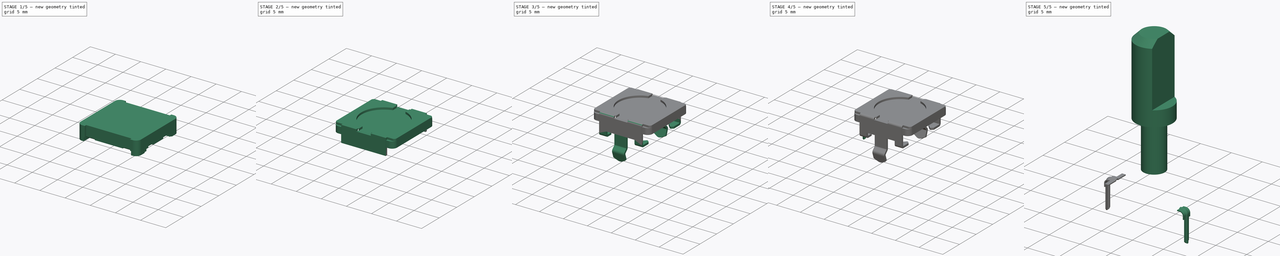
[diagram: build sequence overview — one tinted view per stage of 5, left to right]
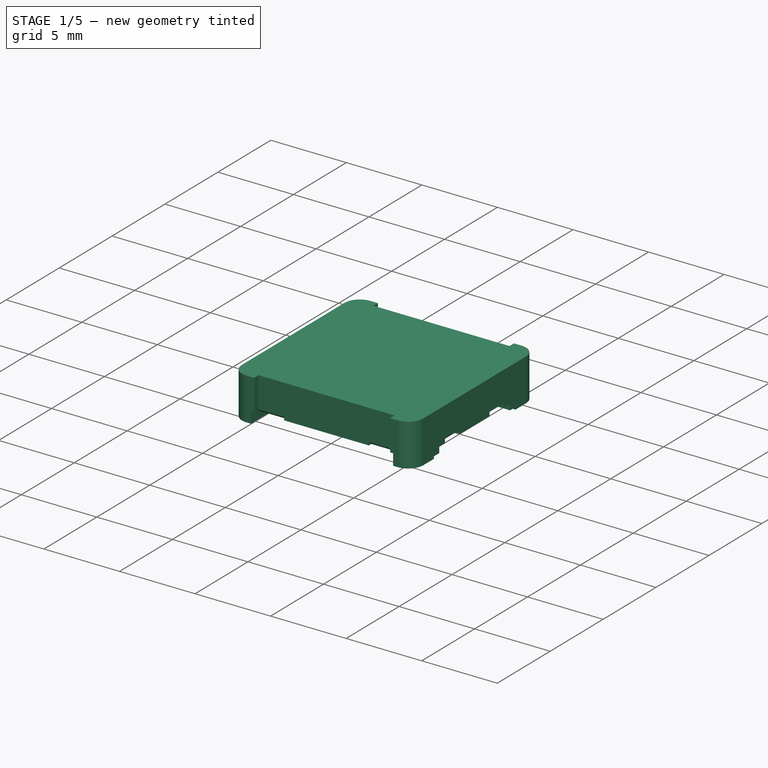
[diagram: stage 1 of 5 — iso view after this stage's code; geometry added in this stage tinted green]
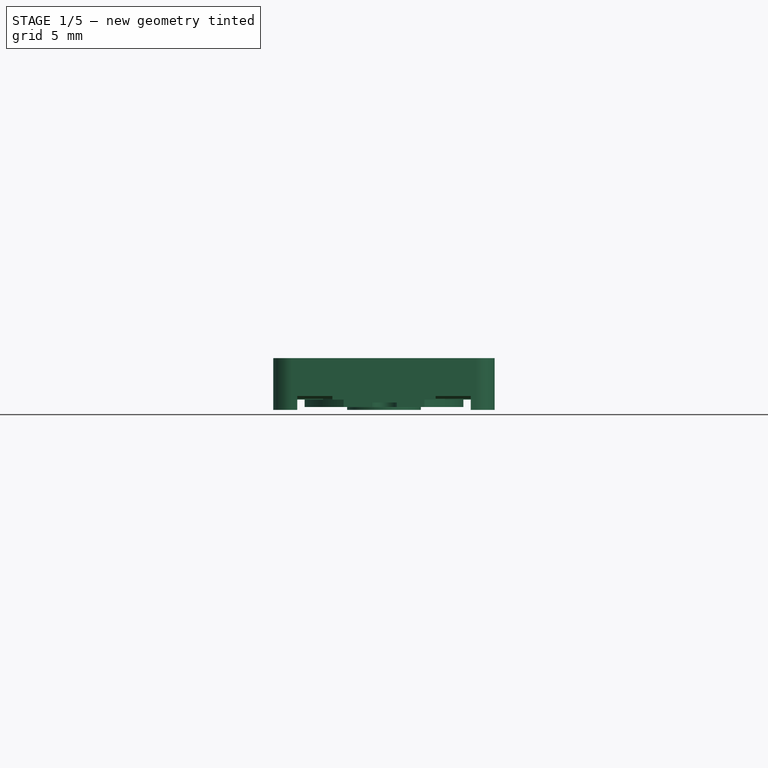
[diagram: stage 1 of 5 — front view after this stage's code; geometry added in this stage tinted green]
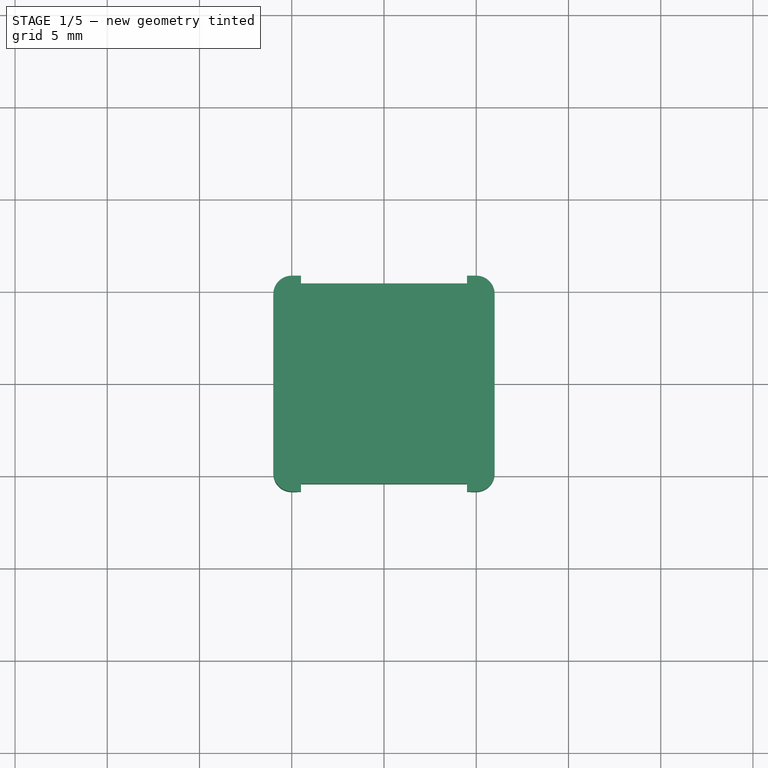
[diagram: stage 1 of 5 — top view after this stage's code; geometry added in this stage tinted green]
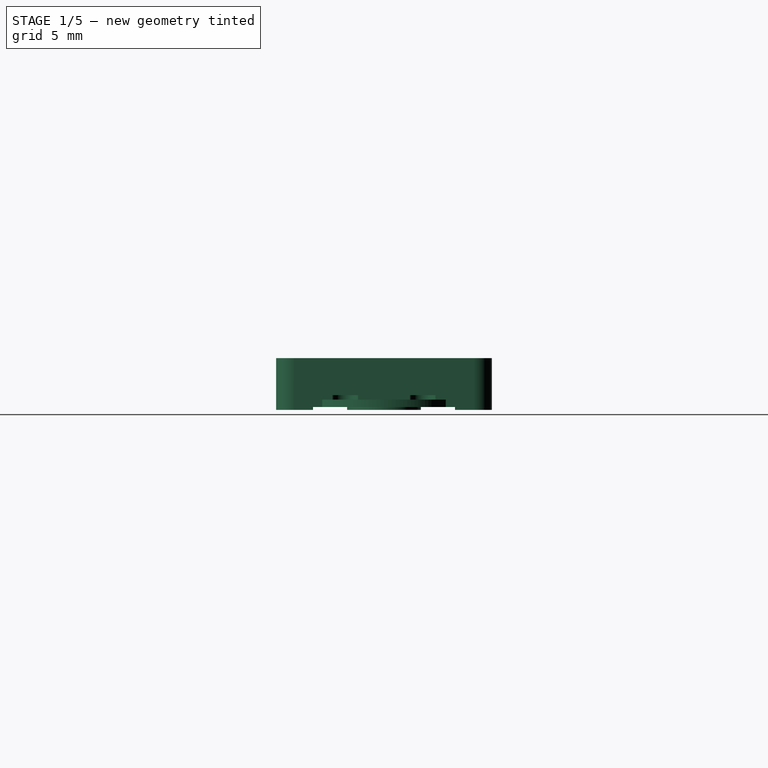
[diagram: stage 1 of 5 — right view after this stage's code; geometry added in this stage tinted green]
FCSTD DOCUMENT  (FreeCAD 1.0R39319 (Git))
Label: RotaryEncoder_Alps_EC11E
License: All rights reserved
LicenseURL: https://en.wikipedia.org/wiki/All_rights_reserved
objects: Sketcher::SketchObject×28, PartDesign::Pad×12, PartDesign::Pocket×11, PartDesign::Body×9, PartDesign::Mirrored×7, PartDesign::SubShapeBinder×4, PartDesign::FeatureBase×4, Image::ImagePlane×3, App::Part×3, PartDesign::Fillet×2, PartDesign::AdditivePipe×2, PartDesign::Chamfer×1, PartDesign::Revolution×1, App::DocumentObjectGroup×1, PartDesign::FeaturePython×1
note: 180 computed .brp shape members not serialized (recipe doc carries the construction recipe); baked Part::Feature solids carry a one-line shape summary decoded from their .brp

FEATURE [Sketcher::SketchObject] Sketch
  ArcFitTolerance = 1e-06
  AttachmentSupport = -> [XY_Plane001]
  FullyConstrained = true
  MakeInternals = false
  MapMode = 5
  sketch-geometry (21):
    g0: LineSegment StartX=-5 StartY=-5.85 StartZ=0 EndX=-4.5 EndY=-5.85 EndZ=0
    g1: LineSegment StartX=6 StartY=-4.85 StartZ=0 EndX=6 EndY=4.85 EndZ=0
    g2: LineSegment StartX=5 StartY=5.85 StartZ=0 EndX=4.5 EndY=5.85 EndZ=0
    g3: LineSegment StartX=-6 StartY=4.85 StartZ=0 EndX=-6 EndY=-4.85 EndZ=0
    g4: GeomPoint [constr] X=0 Y=0 Z=0
    g5: ArcOfCircle CenterX=-5 CenterY=4.85 CenterZ=0 NormalX=0 NormalY=0 NormalZ=1 AngleXU=0 Radius=1 StartAngle=1.5708 EndAngle=3.14159
    g6: GeomPoint [constr] X=-6 Y=5.85 Z=0
    g7: ArcOfCircle CenterX=5 CenterY=4.85 CenterZ=0 NormalX=0 NormalY=0 NormalZ=1 AngleXU=0 Radius=1 StartAngle=0 EndAngle=1.5708
    g8: GeomPoint [constr] X=6 Y=5.85 Z=0
    g9: ArcOfCircle CenterX=5 CenterY=-4.85 CenterZ=0 NormalX=0 NormalY=0 NormalZ=1 AngleXU=0 Radius=1 StartAngle=4.71239 EndAngle=6.28319
    g10: GeomPoint [constr] X=6 Y=-5.85 Z=0
    g11: ArcOfCircle CenterX=-5 CenterY=-4.85 CenterZ=0 NormalX=0 NormalY=0 NormalZ=1 AngleXU=0 Radius=1 StartAngle=3.14159 EndAngle=4.71239
    g12: GeomPoint [constr] X=-6 Y=-5.85 Z=0
    g13: LineSegment StartX=-4.5 StartY=-5.85 StartZ=0 EndX=-4.5 EndY=-5.434 EndZ=0
    g14: LineSegment StartX=-4.5 StartY=-5.434 StartZ=0 EndX=4.5 EndY=-5.434 EndZ=0
    g15: LineSegment StartX=4.5 StartY=-5.434 StartZ=0 EndX=4.5 EndY=-5.85 EndZ=0
    g16: LineSegment StartX=4.5 StartY=-5.85 StartZ=0 EndX=5 EndY=-5.85 EndZ=0
    g17: LineSegment StartX=-4.5 StartY=5.85 StartZ=0 EndX=-4.5 EndY=5.434 EndZ=0
    g18: LineSegment StartX=-4.5 StartY=5.434 StartZ=0 EndX=4.5 EndY=5.434 EndZ=0
    g19: LineSegment StartX=4.5 StartY=5.434 StartZ=0 EndX=4.5 EndY=5.85 EndZ=0
    g20: LineSegment StartX=-4.5 StartY=5.85 StartZ=0 EndX=-5 EndY=5.85 EndZ=0
  constraints (53):
    c: Horizontal(g0)
    c: Horizontal(g2)
    c: Vertical(g1)
    c: Vertical(g3)
    c: Symmetric(g8,g12,g4)
    c: Coincident(g4,g-1)
    c: DistanceY(g10,g8) = 11.7
    c: DistanceX(g6,g8) = 12
    c: PointOnObject(g6,g20)
    c: PointOnObject(g6,g3)
    c: Tangent(g3,g5) = -1.5708
    c: PointOnObject(g8,g1)
    c: PointOnObject(g8,g2)
    c: Tangent(g1,g7) = -1.5708
    c: Tangent(g2,g7) = -1.5708
    c: PointOnObject(g10,g16)
    c: PointOnObject(g10,g1)
    c: Tangent(g1,g9) = -1.5708
    c: PointOnObject(g12,g0)
    c: PointOnObject(g12,g3)
    c: Tangent(g0,g11) = -1.5708
    c: Tangent(g3,g11) = -1.5708
    c: Equal(g5,g7)
    c: Equal(g5,g11)
    c: Equal(g11,g9)
    c: Radius(g5) = 1
    c: Vertical(g13)
    c: Coincident(g14,g13)
    c: PointOnObject(g15,g16)
    c: Vertical(g15)
    c: Coincident(g14,g15)
    c: Symmetric(g13,g14,g-2)
    c: DistanceX(g14,g14) = 9
    c: Coincident(g0,g13)
    c: PointOnObject(g16,g15)
    c: Horizontal(g16)
    c: Equal(g13,g15)
    c: Tangent(g16,g9) = -1.5708
    c: Coincident(g17,g18)
    c: Coincident(g18,g19)
    c: Vertical(g17)
    c: Vertical(g19)
    c: Horizontal(g18)
    c: PointOnObject(g17,g20)
    c: Equal(g19,g15)
    c: Equal(g18,g14)
    c: Vertical(g17,g13)
    c: PointOnObject(g20,g17)
    c: Tangent(g20,g5) = -1.5708
    c: Horizontal(g20)
    c: Coincident(g19,g2)
    c: Equal(g17,g19)
    c: DistanceY(g13,g-1) = 5.434
FEATURE [PartDesign::Pad] Pad
  Direction = (0,0,1)
  Length = 2.8
  Length2 = 10
  Profile = -> Sketch
  ReferenceAxis = -> Sketch [N_Axis]
  Refine = true
  Suppressed = false
  Type = 0
FEATURE [PartDesign::Body] Body008  label="PinS2"
  AllowCompound = false
  Group = -> [Clone003]
  Origin = -> Origin010
  Placement = pos=(0,5,0) rot=(0,0,1;0rad)
  Tip = -> Clone003
FEATURE [Image::ImagePlane] product_detail_fig_ec11_d_83_en_1f3da99620  label="Footprint"
  Placement = pos=(-1.3,-5.25,0) rot=(0,0,-1;1.5708rad)
  XSize = 55.2563
  YSize = 56.2933
FEATURE [Image::ImagePlane] product_detail_fig_ec11_d_82_en_2cca8e7a94  label="Top"
  Placement = pos=(-0.15,26.6,20) rot=(0,0,-1;1.5708rad)
  XSize = 82.6114
  YSize = 59.0671
FEATURE [Image::ImagePlane] product_detail_fig_ec11_d_82_en_2cca8e7a095  label="Side"
  Placement = pos=(-0.15,-6,23.9) rot=(0.57735,0.57735,0.57735;4.18879rad)
  XSize = 158.73
  YSize = 113.492
FEATURE [App::DocumentObjectGroup] Group  label="Reference"
  Group = -> [product_detail_fig_ec11_d_82_en_2cca8e7a94,product_detail_fig_ec11_d_82_en_2cca8e7a095,product_detail_fig_ec11_d_83_en_1f3da99620]
FEATURE [Sketcher::SketchObject] Sketch015
  ArcFitTolerance = 1e-06
  AttachmentSupport = -> [Pad]
  ExternalGeometry = -> [Pad]
  FullyConstrained = true
  MakeInternals = false
  MapMode = 5
  Placement = pos=(0,0,0) rot=(1,0,0;3.14159rad)
  sketch-geometry (19):
    g0: Circle CenterX=0 CenterY=0 CenterZ=0 NormalX=0 NormalY=0 NormalZ=1 AngleXU=0 Radius=2
    g1: LineSegment [constr] StartX=5 StartY=5.85 StartZ=0 EndX=4.7 EndY=5.85 EndZ=0
    g2: LineSegment StartX=4.7 StartY=5.85 StartZ=0 EndX=4.7 EndY=3.85 EndZ=0
    g3: LineSegment StartX=4.7 StartY=3.85 StartZ=0 EndX=6 EndY=3.85 EndZ=0
    g4: LineSegment [constr] StartX=6 StartY=3.85 StartZ=0 EndX=6 EndY=4.85 EndZ=0
    g5: LineSegment StartX=4.7 StartY=5.85 StartZ=0 EndX=0 EndY=5.85 EndZ=0
    g6: LineSegment StartX=6 StartY=3.85 StartZ=0 EndX=6 EndY=0 EndZ=0
    g7: LineSegment StartX=-4.7 StartY=5.85 StartZ=0 EndX=0 EndY=5.85 EndZ=0
    g8: LineSegment StartX=-4.7 StartY=5.85 StartZ=0 EndX=-4.7 EndY=3.85 EndZ=0
    g9: LineSegment StartX=-4.7 StartY=3.85 StartZ=0 EndX=-6 EndY=3.85 EndZ=0
    g10: LineSegment StartX=-6 StartY=3.85 StartZ=0 EndX=-6 EndY=0 EndZ=0
    g11: LineSegment StartX=4.7 StartY=-5.85 StartZ=0 EndX=4.7 EndY=-3.85 EndZ=0
    g12: LineSegment StartX=4.7 StartY=-3.85 StartZ=0 EndX=6 EndY=-3.85 EndZ=0
    g13: LineSegment StartX=4.7 StartY=-5.85 StartZ=0 EndX=0 EndY=-5.85 EndZ=0
    g14: LineSegment StartX=6 StartY=-3.85 StartZ=0 EndX=6 EndY=0 EndZ=0
    g15: LineSegment StartX=-4.7 StartY=-5.85 StartZ=0 EndX=0 EndY=-5.85 EndZ=0
    g16: LineSegment StartX=-4.7 StartY=-5.85 StartZ=0 EndX=-4.7 EndY=-3.85 EndZ=0
    g17: LineSegment StartX=-4.7 StartY=-3.85 StartZ=0 EndX=-6 EndY=-3.85 EndZ=0
    g18: LineSegment StartX=-6 StartY=-3.85 StartZ=0 EndX=-6 EndY=0 EndZ=0
  constraints (43):
    c: Coincident(g0,g-1)
    c: Diameter(g0) = 4
    c: Coincident(g1,g-3)
    c: Coincident(g2,g1)
    c: Vertical(g2)
    c: Coincident(g3,g2)
    c: Horizontal(g3)
    c: Coincident(g4,g3)
    c: Coincident(g4,g-3)
    c: Vertical(g4)
    c: Horizontal(g1)
    c: DistanceY(g2,g2) = 2
    c: DistanceX(g3,g3) = 1.3
    c: Coincident(g5,g1)
    c: PointOnObject(g5,g-2)
    c: Horizontal(g5)
    c: Coincident(g6,g3)
    c: PointOnObject(g6,g-1)
    c: Vertical(g6)
    c: Symmetric(g2,g8,g-2)
    c: Symmetric(g2,g8,g-2)
    c: Symmetric(g3,g9,g-2)
    c: Symmetric(g3,g9,g-2)
    c: Symmetric(g5,g7,g-2)
    c: Symmetric(g6,g10,g-2)
    c: Symmetric(g6,g10,g-2)
    c: Coincident(g7,g5)
    c: Symmetric(g2,g11,g-1)
    c: Symmetric(g2,g11,g-1)
    c: Symmetric(g3,g12,g-1)
    c: Symmetric(g3,g12,g-1)
    c: Symmetric(g5,g13,g-1)
    c: Symmetric(g5,g13,g-1)
    c: Symmetric(g6,g14,g-1)
    c: Symmetric(g7,g15,g-1)
    c: Symmetric(g7,g15,g-1)
    c: Symmetric(g8,g16,g-1)
    c: Symmetric(g8,g16,g-1)
    c: Symmetric(g9,g17,g-1)
    c: Symmetric(g9,g17,g-1)
    c: Symmetric(g10,g18,g-1)
    c: Coincident(g18,g10)
    c: Coincident(g14,g6)
FEATURE [PartDesign::Pocket] Pocket004  label="BottomGeometry1"
  BaseFeature = -> Pad
  Direction = (0,0,1)
  Length = 0.15
  Length2 = 5
  Profile = -> Sketch015
  ReferenceAxis = -> Sketch015 [N_Axis]
  Refine = true
  Suppressed = false
  Type = 0
FEATURE [Sketcher::SketchObject] Sketch016
  ArcFitTolerance = 1e-06
  AttachmentSupport = -> [Pocket004]
  ExternalGeometry = -> [Pocket004]
  FullyConstrained = true
  MakeInternals = false
  MapMode = 5
  Placement = pos=(0,0,0.15) rot=(1,0,0;3.14159rad)
  sketch-geometry (20):
    g0: ArcOfCircle CenterX=0 CenterY=0 CenterZ=0 NormalX=0 NormalY=0 NormalZ=1 AngleXU=0 Radius=4.3 StartAngle=2.10541 EndAngle=4.17777
    g1: LineSegment StartX=0 StartY=5.85 StartZ=0 EndX=-4.7 EndY=5.85 EndZ=0
    g2: LineSegment StartX=-4.7 StartY=5.85 StartZ=0 EndX=-4.7 EndY=3.35 EndZ=0
    g3: LineSegment StartX=-4.7 StartY=3.35 StartZ=0 EndX=-6 EndY=3.35 EndZ=0
    g4: LineSegment StartX=-6 StartY=3.35 StartZ=0 EndX=-6 EndY=0 EndZ=0
    g5: LineSegment StartX=0 StartY=5.85 StartZ=0 EndX=4.7 EndY=5.85 EndZ=0
    g6: LineSegment StartX=4.7 StartY=5.85 StartZ=0 EndX=4.7 EndY=3.35 EndZ=0
    g7: LineSegment StartX=4.7 StartY=3.35 StartZ=0 EndX=6 EndY=3.35 EndZ=0
    g8: LineSegment StartX=6 StartY=3.35 StartZ=0 EndX=6 EndY=0 EndZ=0
    g9: LineSegment StartX=0 StartY=-5.85 StartZ=0 EndX=-4.7 EndY=-5.85 EndZ=0
    g10: LineSegment StartX=-4.7 StartY=-5.85 StartZ=0 EndX=-4.7 EndY=-3.35 EndZ=0
    g11: LineSegment StartX=-4.7 StartY=-3.35 StartZ=0 EndX=-6 EndY=-3.35 EndZ=0
    g12: LineSegment StartX=-6 StartY=-3.35 StartZ=0 EndX=-6 EndY=0 EndZ=0
    g13: LineSegment StartX=0 StartY=-5.85 StartZ=0 EndX=4.7 EndY=-5.85 EndZ=0
    g14: LineSegment StartX=4.7 StartY=-5.85 StartZ=0 EndX=4.7 EndY=-3.35 EndZ=0
    g15: LineSegment StartX=4.7 StartY=-3.35 StartZ=0 EndX=6 EndY=-3.35 EndZ=0
    g16: LineSegment StartX=6 StartY=-3.35 StartZ=0 EndX=6 EndY=0 EndZ=0
    g17: LineSegment StartX=-2.19089 StartY=3.7 StartZ=0 EndX=2.19089 EndY=3.7 EndZ=0
    g18: LineSegment StartX=-2.19089 StartY=-3.7 StartZ=0 EndX=2.19089 EndY=-3.7 EndZ=0
    g19: ArcOfCircle CenterX=0 CenterY=0 CenterZ=0 NormalX=0 NormalY=0 NormalZ=1 AngleXU=0 Radius=4.3 StartAngle=5.247 EndAngle=7.31937
  constraints (49):
    c: Coincident(g0,g-1)
    c: Diameter(g0) = 8.6
    c: PointOnObject(g1,g-2)
    c: Coincident(g1,g-4)
    c: Horizontal(g1)
    c: Coincident(g2,g1)
    c: Vertical(g2)
    c: Coincident(g3,g2)
    c: Horizontal(g3)
    c: Coincident(g4,g3)
    c: PointOnObject(g4,g-1)
    c: Vertical(g4)
    c: Vertical(g-3,g3)
    c: DistanceY(g2,g2) = 2.5
    c: Symmetric(g1,g5,g-2)
    c: Symmetric(g2,g6,g-2)
    c: Symmetric(g2,g6,g-2)
    c: Symmetric(g3,g7,g-2)
    c: Symmetric(g3,g7,g-2)
    c: Symmetric(g4,g8,g-2)
    c: Symmetric(g4,g8,g-2)
    c: Coincident(g5,g1)
    c: Symmetric(g1,g9,g-1)
    c: Symmetric(g1,g9,g-1)
    c: Symmetric(g2,g10,g-1)
    c: Symmetric(g2,g10,g-1)
    c: Symmetric(g3,g11,g-1)
    c: Symmetric(g3,g11,g-1)
    c: Symmetric(g4,g12,g-1)
    c: Symmetric(g5,g13,g-1)
    c: Symmetric(g5,g13,g-1)
    c: Symmetric(g6,g14,g-1)
    c: Symmetric(g6,g14,g-1)
    c: Symmetric(g7,g15,g-1)
    c: Symmetric(g7,g15,g-1)
    c: Symmetric(g8,g16,g-1)
    c: Coincident(g12,g4)
    c: Coincident(g16,g8)
    c: Horizontal(g17)
    c: Distance(g0,g17) = 3.7
    c: PointOnObject(g18,g19)
    c: Horizontal(g18)
    c: Equal(g18,g17)
    c: Coincident(g19,g17)
    c: Coincident(g0,g17)
    c: Equal(g0,g19)
    c: Coincident(g0,g18)
    c: PointOnObject(g19,g18)
    c: Coincident(g0,g19)
FEATURE [PartDesign::Pocket] Pocket005  label="BottomGeometry2"
  BaseFeature = -> Pocket004
  Direction = (0,0,1)
  Length = 0.4
  Length2 = 5
  Profile = -> Sketch016
  ReferenceAxis = -> Sketch016 [N_Axis]
  Refine = true
  Suppressed = false
  Type = 0
FEATURE [Sketcher::SketchObject] Sketch017
  ArcFitTolerance = 1e-06
  AttachmentSupport = -> [Pocket005]
  ExternalGeometry = -> [Pocket005]
  FullyConstrained = true
  MakeInternals = false
  MapMode = 5
  Placement = pos=(0,0,0.15) rot=(1,0,0;3.14159rad)
  sketch-geometry (8):
    g0: LineSegment StartX=-0.7 StartY=3.7 StartZ=0 EndX=-0.7 EndY=3 EndZ=0
    g1: LineSegment StartX=0.7 StartY=3.7 StartZ=0 EndX=0.7 EndY=3 EndZ=0
    g2: ArcOfCircle CenterX=-1e-16 CenterY=3 CenterZ=0 NormalX=0 NormalY=0 NormalZ=1 AngleXU=0 Radius=0.7 StartAngle=3.14159 EndAngle=6.28319
    g3: LineSegment StartX=-0.7 StartY=3.7 StartZ=0 EndX=0.7 EndY=3.7 EndZ=0
    g4: LineSegment StartX=-0.7 StartY=-3.7 StartZ=0 EndX=-0.7 EndY=-3 EndZ=0
    g5: LineSegment StartX=0.7 StartY=-3.7 StartZ=0 EndX=0.7 EndY=-3 EndZ=0
    g6: ArcOfCircle CenterX=0 CenterY=-2.99999 CenterZ=0 NormalX=0 NormalY=0 NormalZ=1 AngleXU=0 Radius=0.7 StartAngle=6.28317 EndAngle=9.42479
    g7: LineSegment StartX=-0.7 StartY=-3.7 StartZ=0 EndX=0.7 EndY=-3.7 EndZ=0
  constraints (19):
    c: PointOnObject(g0,g-3)
    c: Vertical(g0)
    c: Vertical(g1)
    c: Radius(g2) = 0.7
    c: Tangent(g2,g1) = 1.5708
    c: Tangent(g2,g0) = -1.5708
    c: Symmetric(g0,g1,g-2)
    c: DistanceY(g1,g1) = 0.7
    c: Coincident(g3,g0)
    c: Coincident(g3,g1)
    c: Symmetric(g0,g4,g-1)
    c: Symmetric(g0,g4,g-1)
    c: Symmetric(g1,g5,g-1)
    c: Symmetric(g1,g5,g-1)
    c: Symmetric(g2,g6,g-1)
    c: Symmetric(g2,g6,g-1)
    c: Symmetric(g3,g7,g-1)
    c: Symmetric(g3,g7,g-1)
    c: Tangent(g6,g5)
FEATURE [PartDesign::Pocket] Pocket006  label="BottomGeometry3"
  BaseFeature = -> Pocket005
  Direction = (0,0,1)
  Length = 0.25
  Length2 = 5
  Profile = -> Sketch017
  ReferenceAxis = -> Sketch017 [N_Axis]
  Refine = true
  Suppressed = false
  Type = 0
FEATURE [Sketcher::SketchObject] Sketch018
  ArcFitTolerance = 1e-06
  AttachmentSupport = -> [Pocket006]
  ExternalGeometry = -> [Pocket006]
  FullyConstrained = true
  MakeInternals = false
  MapMode = 5
  Placement = pos=(0,0,0.55) rot=(1,0,0;3.14159rad)
  sketch-geometry (20):
    g0: LineSegment StartX=-4.7 StartY=-5.85 StartZ=0 EndX=-4.7 EndY=-3.15 EndZ=0
    g1: LineSegment StartX=-4.7 StartY=-3.15 StartZ=0 EndX=-3.3 EndY=-3.15 EndZ=0
    g2: LineSegment StartX=-3.3 StartY=-3.15 StartZ=0 EndX=-2.8 EndY=-3.65 EndZ=0
    g3: LineSegment StartX=-2.8 StartY=-3.65 StartZ=0 EndX=-2.8 EndY=-5.85 EndZ=0
    g4: LineSegment StartX=-2.8 StartY=-5.85 StartZ=0 EndX=-4.7 EndY=-5.85 EndZ=0
    g5: LineSegment StartX=4.7 StartY=-5.85 StartZ=0 EndX=4.7 EndY=-3.15 EndZ=0
    g6: LineSegment StartX=4.7 StartY=-3.15 StartZ=0 EndX=3.3 EndY=-3.15 EndZ=0
    g7: LineSegment StartX=3.3 StartY=-3.15 StartZ=0 EndX=2.8 EndY=-3.65 EndZ=0
    g8: LineSegment StartX=2.8 StartY=-3.65 StartZ=0 EndX=2.8 EndY=-5.85 EndZ=0
    g9: LineSegment StartX=2.8 StartY=-5.85 StartZ=0 EndX=4.7 EndY=-5.85 EndZ=0
    g10: LineSegment StartX=-4.7 StartY=5.85 StartZ=0 EndX=-4.7 EndY=3.15 EndZ=0
    g11: LineSegment StartX=-4.7 StartY=3.15 StartZ=0 EndX=-3.3 EndY=3.15 EndZ=0
    g12: LineSegment StartX=-3.3 StartY=3.15 StartZ=0 EndX=-2.8 EndY=3.65 EndZ=0
    g13: LineSegment StartX=-2.8 StartY=3.65 StartZ=0 EndX=-2.8 EndY=5.85 EndZ=0
    g14: LineSegment StartX=-2.8 StartY=5.85 StartZ=0 EndX=-4.7 EndY=5.85 EndZ=0
    g15: LineSegment StartX=4.7 StartY=5.85 StartZ=0 EndX=4.7 EndY=3.15 EndZ=0
    g16: LineSegment StartX=4.7 StartY=3.15 StartZ=0 EndX=3.3 EndY=3.15 EndZ=0
    g17: LineSegment StartX=3.3 StartY=3.15 StartZ=0 EndX=2.8 EndY=3.65 EndZ=0
    g18: LineSegment StartX=2.8 StartY=3.65 StartZ=0 EndX=2.8 EndY=5.85 EndZ=0
    g19: LineSegment StartX=2.8 StartY=5.85 StartZ=0 EndX=4.7 EndY=5.85 EndZ=0
  constraints (44):
    c: Coincident(g0,g-3)
    c: Vertical(g0)
    c: Coincident(g1,g0)
    c: Horizontal(g1)
    c: Coincident(g2,g1)
    c: Coincident(g3,g2)
    c: Vertical(g3)
    c: Coincident(g4,g3)
    c: Coincident(g4,g0)
    c: Horizontal(g4)
    c: DistanceX(g4,g4) = 1.9
    c: DistanceY(g0,g0) = 2.7
    c: Angle(g2,g1) = 0.785398
    c: DistanceX(g1,g2) = 0.5
    c: Symmetric(g0,g5,g-2)
    c: Symmetric(g0,g5,g-2)
    c: Symmetric(g1,g6,g-2)
    c: Symmetric(g1,g6,g-2)
    c: Symmetric(g2,g7,g-2)
    c: Symmetric(g2,g7,g-2)
    c: Symmetric(g3,g8,g-2)
    c: Symmetric(g3,g8,g-2)
    c: Symmetric(g4,g9,g-2)
    c: Symmetric(g4,g9,g-2)
    c: Symmetric(g0,g10,g-1)
    c: Symmetric(g0,g10,g-1)
    c: Symmetric(g1,g11,g-1)
    c: Symmetric(g1,g11,g-1)
    c: Symmetric(g2,g12,g-1)
    c: Symmetric(g2,g12,g-1)
    c: Symmetric(g3,g13,g-1)
    c: Symmetric(g3,g13,g-1)
    c: Symmetric(g4,g14,g-1)
    c: Symmetric(g4,g14,g-1)
    c: Symmetric(g5,g15,g-1)
    c: Symmetric(g5,g15,g-1)
    c: Symmetric(g6,g16,g-1)
    c: Symmetric(g6,g16,g-1)
    c: Symmetric(g7,g17,g-1)
    c: Symmetric(g7,g17,g-1)
    c: Symmetric(g8,g18,g-1)
    c: Symmetric(g8,g18,g-1)
    c: Symmetric(g9,g19,g-1)
    c: Symmetric(g9,g19,g-1)
FEATURE [PartDesign::Pocket] Pocket007  label="BottomGeometry4"
  BaseFeature = -> Pocket006
  Direction = (0,0,1)
  Length = 0.2
  Length2 = 5
  Profile = -> Sketch018
  ReferenceAxis = -> Sketch018 [N_Axis]
  Refine = true
  Suppressed = false
  Type = 0
FEATURE [Sketcher::SketchObject] Sketch019
  ArcFitTolerance = 1e-06
  AttachmentSupport = -> [Pocket007]
  ExternalGeometry = -> [Pocket007]
  FullyConstrained = true
  MakeInternals = false
  MapMode = 5
  Placement = pos=(4.7,0,0) rot=(0.57735,-0.57735,-0.57735;2.0944rad)
  sketch-geometry (4):
    g0: LineSegment StartX=5.434 StartY=0.75 StartZ=0 EndX=5.284 EndY=0.6 EndZ=0
    g1: LineSegment StartX=5.284 StartY=0.6 StartZ=0 EndX=3.15 EndY=0.7 EndZ=0
    g2: LineSegment StartX=3.15 StartY=0.7 StartZ=0 EndX=3.15 EndY=0.75 EndZ=0
    g3: LineSegment StartX=3.15 StartY=0.75 StartZ=0 EndX=5.434 EndY=0.75 EndZ=0
  constraints (11):
    c: Coincident(g1,g0)
    c: Vertical(g-3,g1)
    c: Coincident(g2,g1)
    c: Coincident(g3,g2)
    c: Coincident(g3,g0)
    c: Horizontal(g3)
    c: Vertical(g2)
    c: Distance(g1,g-3) = 0.15
    c: Angle(g3,g0) = 0.785398
    c: Distance(g0,g3) = 0.15
    c: Coincident(g3,g-4)
FEATURE [PartDesign::Pad] Pad006  label="BottomGeometry5"
  BaseFeature = -> Pocket007
  Direction = (-1,0,0)
  Length = 10
  Length2 = 10
  Profile = -> Sketch019
  ReferenceAxis = -> Sketch019 [N_Axis]
  Refine = true
  Suppressed = false
  Type = 3
  UpToFace = -> Pocket007 [Face67]
FEATURE [PartDesign::Mirrored] Mirrored004
  BaseFeature = -> Pad006
  MirrorPlane = -> XZ_Plane001
  Originals = -> [Pad006]
  Refine = true
  Suppressed = false
  TransformMode = 0
FEATURE [Sketcher::SketchObject] Sketch020
  ArcFitTolerance = 1e-06
  AttachmentSupport = -> [Mirrored004]
  ExternalGeometry = -> [Mirrored004]
  FullyConstrained = true
  MakeInternals = false
  MapMode = 5
  Placement = pos=(0,0,0.55) rot=(1,0,0;3.14159rad)
  sketch-geometry (16):
    g0: LineSegment StartX=6 StartY=2.8 StartZ=0 EndX=5 EndY=2.8 EndZ=0
    g1: LineSegment StartX=6 StartY=1.4 StartZ=0 EndX=5 EndY=1.4 EndZ=0
    g2: ArcOfCircle CenterX=5 CenterY=2.1 CenterZ=0 NormalX=0 NormalY=0 NormalZ=1 AngleXU=0 Radius=0.7 StartAngle=1.5708 EndAngle=4.71239
    g3: LineSegment StartX=6 StartY=2.8 StartZ=0 EndX=6 EndY=1.4 EndZ=0
    g4: LineSegment StartX=6 StartY=-2.8 StartZ=0 EndX=5 EndY=-2.8 EndZ=0
    g5: LineSegment StartX=6 StartY=-1.4 StartZ=0 EndX=5 EndY=-1.4 EndZ=0
    g6: ArcOfCircle CenterX=5 CenterY=-2.1 CenterZ=0 NormalX=0 NormalY=0 NormalZ=1 AngleXU=0 Radius=0.7 StartAngle=1.5708 EndAngle=4.71239
    g7: LineSegment StartX=6 StartY=-2.8 StartZ=0 EndX=6 EndY=-1.4 EndZ=0
    g8: LineSegment StartX=-6 StartY=2.8 StartZ=0 EndX=-5 EndY=2.8 EndZ=0
    g9: LineSegment StartX=-6 StartY=1.4 StartZ=0 EndX=-5 EndY=1.4 EndZ=0
    g10: ArcOfCircle CenterX=-5.00001 CenterY=2.1 CenterZ=0 NormalX=0 NormalY=0 NormalZ=1 AngleXU=0 Radius=0.7 StartAngle=4.7124 EndAngle=7.85397
    g11: LineSegment StartX=-6 StartY=2.8 StartZ=0 EndX=-6 EndY=1.4 EndZ=0
    g12: LineSegment StartX=-6 StartY=-2.8 StartZ=0 EndX=-5 EndY=-2.8 EndZ=0
    g13: LineSegment StartX=-6 StartY=-1.4 StartZ=0 EndX=-5 EndY=-1.4 EndZ=0
    g14: ArcOfCircle CenterX=-5 CenterY=-2.1 CenterZ=0 NormalX=0 NormalY=0 NormalZ=1 AngleXU=0 Radius=0.7 StartAngle=4.71239 EndAngle=7.85398
    g15: LineSegment StartX=-6 StartY=-2.8 StartZ=0 EndX=-6 EndY=-1.4 EndZ=0
  constraints (38):
    c: PointOnObject(g0,g-3)
    c: Horizontal(g0)
    c: PointOnObject(g1,g-3)
    c: Tangent(g2,g0) = -1.5708
    c: Tangent(g2,g1) = 1.5708
    c: Horizontal(g1)
    c: Radius(g2) = 0.7
    c: DistanceX(g1,g1) = 1
    c: Coincident(g3,g0)
    c: Coincident(g3,g1)
    c: DistanceY(g-1,g1) = 1.4
    c: Symmetric(g0,g4,g-1)
    c: Symmetric(g0,g4,g-1)
    c: Symmetric(g1,g5,g-1)
    c: Symmetric(g1,g5,g-1)
    c: Symmetric(g2,g6,g-1)
    c: Symmetric(g2,g6,g-1)
    c: Symmetric(g3,g7,g-1)
    c: Symmetric(g3,g7,g-1)
    c: Tangent(g6,g5)
    c: Symmetric(g0,g8,g-2)
    c: Symmetric(g0,g8,g-2)
    c: Symmetric(g1,g9,g-2)
    c: Symmetric(g1,g9,g-2)
    c: Symmetric(g2,g10,g-2)
    c: Symmetric(g2,g10,g-2)
    c: Symmetric(g3,g11,g-2)
    c: Symmetric(g3,g11,g-2)
    c: Symmetric(g4,g12,g-2)
    c: Symmetric(g4,g12,g-2)
    c: Symmetric(g5,g13,g-2)
    c: Symmetric(g5,g13,g-2)
    c: Equal(g6,g14)
    c: Symmetric(g6,g14,g-2)
    c: Symmetric(g6,g14,g-2)
    c: Symmetric(g7,g15,g-2)
    c: Symmetric(g7,g15,g-2)
    c: Tangent(g10,g8)
FEATURE [PartDesign::Pocket] Pocket008  label="BottomGeometry6"
  BaseFeature = -> Mirrored004
  Direction = (0,0,1)
  Length = 0.25
  Length2 = 5
  Profile = -> Sketch020
  ReferenceAxis = -> Sketch020 [N_Axis]
  Refine = true
  Suppressed = false
  Type = 0
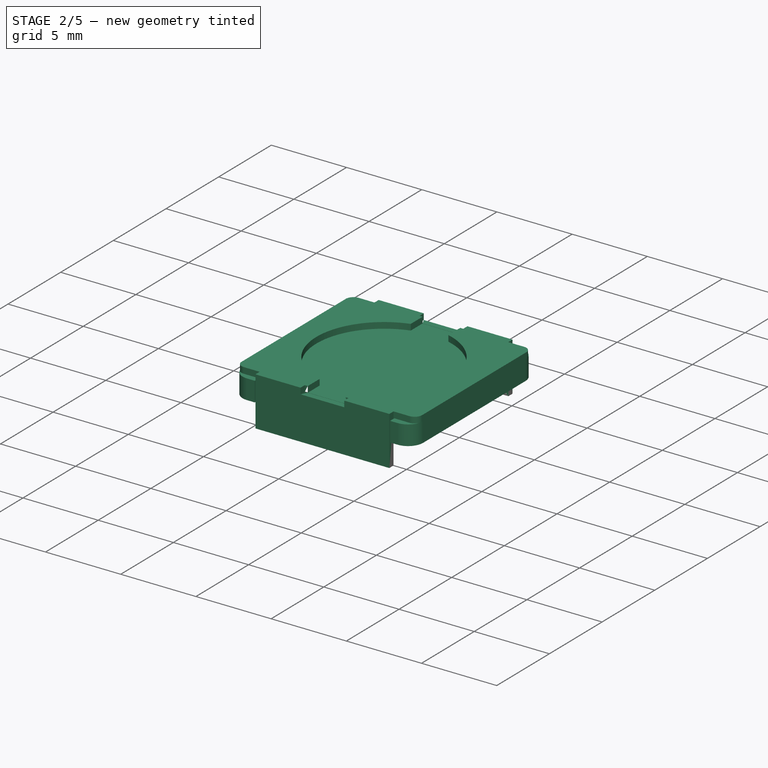
[diagram: stage 2 of 5 — iso view after this stage's code; geometry added in this stage tinted green]
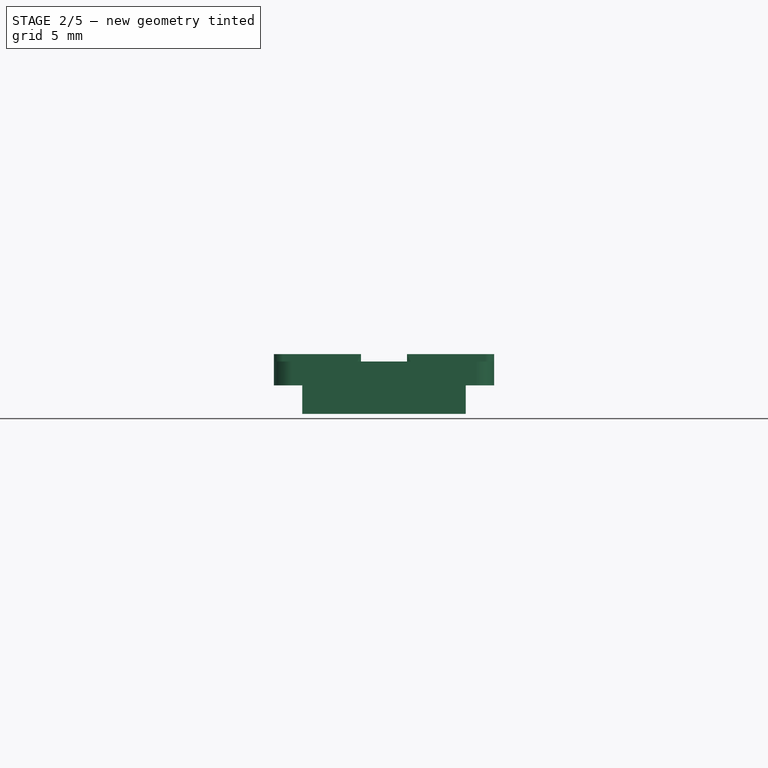
[diagram: stage 2 of 5 — front view after this stage's code; geometry added in this stage tinted green]
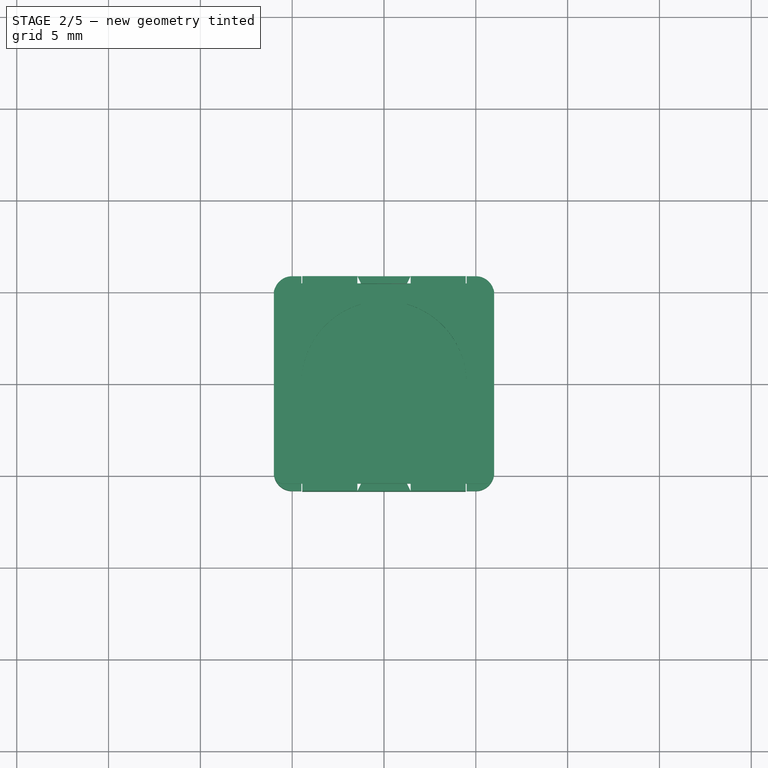
[diagram: stage 2 of 5 — top view after this stage's code; geometry added in this stage tinted green]
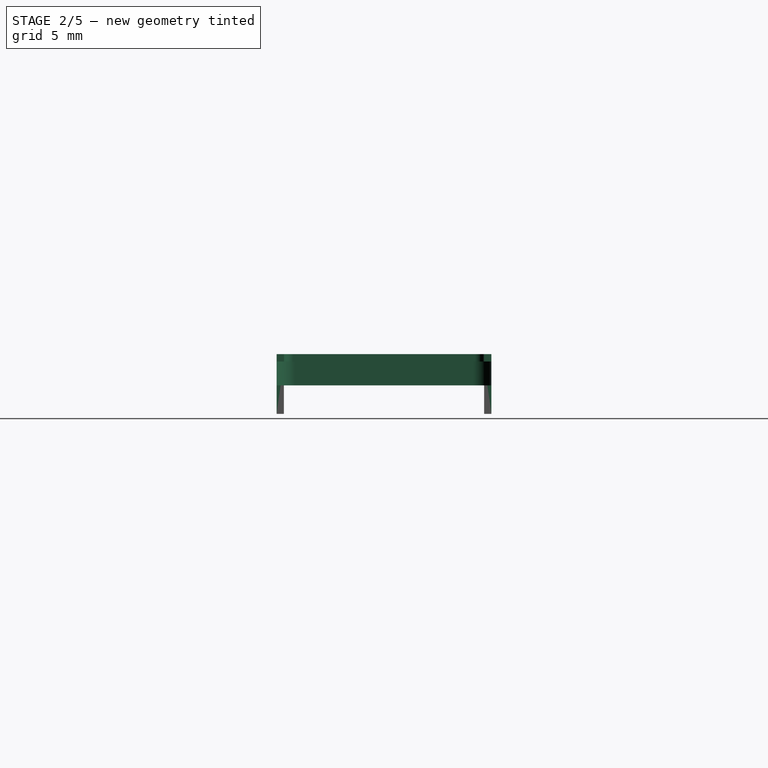
[diagram: stage 2 of 5 — right view after this stage's code; geometry added in this stage tinted green]
FEATURE [PartDesign::SubShapeBinder] Binder
  BindCopyOnChange = 0
  BindMode = 0
  ClaimChildren = false
  Context = -> Part [Body001.Binder.]
  Fuse = false
  MakeFace = true
  OffsetFill = false
  OffsetIntersection = false
  OffsetJoinType = 0
  OffsetOpenResult = false
  PartialLoad = false
  Refine = true
  Relative = true
  Support = -> [Body]
  _Version = 2
FEATURE [Sketcher::SketchObject] Sketch001
  ArcFitTolerance = 1e-06
  AttachmentSupport = -> [Binder]
  ExternalGeometry = -> [Binder]
  FullyConstrained = true
  MakeInternals = false
  MapMode = 5
  Placement = pos=(0,0,2.8) rot=(0,0,1;0rad)
  sketch-geometry (18):
    g0: LineSegment StartX=-4.5 StartY=5.434 StartZ=0 EndX=-4.5 EndY=5.85 EndZ=0
    g1: LineSegment StartX=-4.5 StartY=5.85 StartZ=0 EndX=-5 EndY=5.85 EndZ=0
    g2: LineSegment StartX=-6 StartY=4.85 StartZ=0 EndX=-6 EndY=0 EndZ=0
    g3: ArcOfCircle CenterX=-5 CenterY=4.85 CenterZ=0 NormalX=0 NormalY=0 NormalZ=1 AngleXU=0 Radius=1 StartAngle=1.5708 EndAngle=3.14159
    g4: LineSegment StartX=-4.5 StartY=5.434 StartZ=0 EndX=4.5 EndY=5.434 EndZ=0
    g5: LineSegment StartX=4.5 StartY=5.434 StartZ=0 EndX=4.5 EndY=5.85 EndZ=0
    g6: LineSegment StartX=4.5 StartY=5.85 StartZ=0 EndX=5 EndY=5.85 EndZ=0
    g7: LineSegment StartX=6 StartY=4.85 StartZ=0 EndX=6 EndY=0 EndZ=0
    g8: ArcOfCircle CenterX=5 CenterY=4.85 CenterZ=0 NormalX=0 NormalY=0 NormalZ=1 AngleXU=0 Radius=1 StartAngle=0 EndAngle=1.5708
    g9: LineSegment StartX=-4.5 StartY=-5.434 StartZ=0 EndX=-4.5 EndY=-5.85 EndZ=0
    g10: LineSegment StartX=-4.5 StartY=-5.85 StartZ=0 EndX=-5 EndY=-5.85 EndZ=0
    g11: LineSegment StartX=-6 StartY=-4.85 StartZ=0 EndX=-6 EndY=0 EndZ=0
    g12: ArcOfCircle CenterX=-5 CenterY=-4.85 CenterZ=0 NormalX=0 NormalY=0 NormalZ=1 AngleXU=0 Radius=1 StartAngle=3.14159 EndAngle=4.71239
    g13: LineSegment StartX=-4.5 StartY=-5.434 StartZ=0 EndX=4.5 EndY=-5.434 EndZ=0
    g14: LineSegment StartX=4.5 StartY=-5.434 StartZ=0 EndX=4.5 EndY=-5.85 EndZ=0
    g15: LineSegment StartX=4.5 StartY=-5.85 StartZ=0 EndX=5 EndY=-5.85 EndZ=0
    g16: LineSegment StartX=6 StartY=-4.85 StartZ=0 EndX=6 EndY=0 EndZ=0
    g17: ArcOfCircle CenterX=5 CenterY=-4.85 CenterZ=0 NormalX=0 NormalY=0 NormalZ=1 AngleXU=0 Radius=1 StartAngle=4.71239 EndAngle=6.28319
  constraints (41):
    c: Vertical(g0)
    c: Coincident(g0,g1)
    c: Horizontal(g1)
    c: Coincident(g1,g-3)
    c: Coincident(g2,g-3)
    c: Vertical(g2)
    c: Coincident(g3,g2)
    c: Tangent(g3,g1) = -1.5708
    c: PointOnObject(g2,g-1)
    c: Symmetric(g0,g4,g-2)
    c: Symmetric(g0,g5,g-2)
    c: Symmetric(g0,g5,g-2)
    c: Symmetric(g1,g6,g-2)
    c: Symmetric(g1,g6,g-2)
    c: Symmetric(g2,g7,g-2)
    c: Symmetric(g2,g7,g-2)
    c: Equal(g3,g8)
    c: Symmetric(g3,g8,g-2)
    c: Symmetric(g3,g8,g-2)
    c: Coincident(g4,g0)
    c: Coincident(g0,g-4)
    c: Symmetric(g0,g9,g-1)
    c: Symmetric(g0,g9,g-1)
    c: Symmetric(g1,g10,g-1)
    c: Symmetric(g1,g10,g-1)
    c: Symmetric(g2,g11,g-1)
    c: Equal(g3,g12)
    c: Symmetric(g3,g12,g-1)
    c: Symmetric(g3,g12,g-1)
    c: Symmetric(g4,g13,g-1)
    c: Symmetric(g4,g13,g-1)
    c: Symmetric(g5,g14,g-1)
    c: Symmetric(g5,g14,g-1)
    c: Symmetric(g6,g15,g-1)
    c: Symmetric(g6,g15,g-1)
    c: Symmetric(g7,g16,g-1)
    c: Equal(g8,g17)
    c: Symmetric(g8,g17,g-1)
    c: Symmetric(g8,g17,g-1)
    c: Coincident(g11,g2)
    c: Coincident(g16,g7)
FEATURE [PartDesign::Pad] Pad001
  Direction = (0,0,1)
  Length = 1.3
  Length2 = 10
  Profile = -> Sketch001
  ReferenceAxis = -> Sketch001 [N_Axis]
  Refine = true
  Suppressed = false
  Type = 0
FEATURE [Sketcher::SketchObject] Sketch002
  ArcFitTolerance = 1e-06
  AttachmentSupport = -> [Pad001]
  FullyConstrained = true
  MakeInternals = false
  MapMode = 5
  Placement = pos=(0,0,4.1) rot=(0,0,1;0rad)
  sketch-geometry (20):
    g0: LineSegment StartX=-6 StartY=4.95 StartZ=0 EndX=-6 EndY=-4.95 EndZ=0
    g1: LineSegment StartX=-5.5 StartY=-5.45 StartZ=0 EndX=-1.25 EndY=-5.45 EndZ=0
    g2: LineSegment StartX=6 StartY=-4.95 StartZ=0 EndX=6 EndY=4.95 EndZ=0
    g3: LineSegment StartX=5.5 StartY=5.45 StartZ=0 EndX=1.25 EndY=5.45 EndZ=0
    g4: ArcOfCircle CenterX=-5.5 CenterY=4.95 CenterZ=0 NormalX=0 NormalY=0 NormalZ=1 AngleXU=0 Radius=0.5 StartAngle=1.5708 EndAngle=3.14159
    g5: GeomPoint [constr] X=-6 Y=5.45 Z=0
    g6: ArcOfCircle CenterX=5.5 CenterY=4.95 CenterZ=0 NormalX=0 NormalY=0 NormalZ=1 AngleXU=0 Radius=0.5 StartAngle=3e-16 EndAngle=1.5708
    g7: GeomPoint [constr] X=6 Y=5.45 Z=0
    g8: ArcOfCircle CenterX=5.5 CenterY=-4.95 CenterZ=0 NormalX=0 NormalY=0 NormalZ=1 AngleXU=0 Radius=0.5 StartAngle=4.71239 EndAngle=6.28319
    g9: GeomPoint [constr] X=6 Y=-5.45 Z=0
    g10: ArcOfCircle CenterX=-5.5 CenterY=-4.95 CenterZ=0 NormalX=0 NormalY=0 NormalZ=1 AngleXU=0 Radius=0.5 StartAngle=3.14159 EndAngle=4.71239
    g11: GeomPoint [constr] X=-6 Y=-5.45 Z=0
    g12: ArcOfCircle CenterX=0 CenterY=0 CenterZ=0 NormalX=0 NormalY=0 NormalZ=1 AngleXU=0 Radius=4.5 StartAngle=1.85228 EndAngle=4.43091
    g13: LineSegment StartX=-1.25 StartY=4.3229 StartZ=0 EndX=-1.25 EndY=5.45 EndZ=0
    g14: LineSegment StartX=-1.25 StartY=-4.3229 StartZ=0 EndX=-1.25 EndY=-5.45 EndZ=0
    g15: LineSegment StartX=1.25 StartY=4.3229 StartZ=0 EndX=1.25 EndY=5.45 EndZ=0
    g16: ArcOfCircle CenterX=-1.2e-15 CenterY=-2e-16 CenterZ=0 NormalX=0 NormalY=0 NormalZ=1 AngleXU=0 Radius=4.5 StartAngle=4.99387 EndAngle=7.5725
    g17: LineSegment StartX=1.25 StartY=-4.3229 StartZ=0 EndX=1.25 EndY=-5.45 EndZ=0
    g18: LineSegment StartX=-1.25 StartY=5.45 StartZ=0 EndX=-5.5 EndY=5.45 EndZ=0
    g19: LineSegment StartX=1.25 StartY=-5.45 StartZ=0 EndX=5.5 EndY=-5.45 EndZ=0
  constraints (49):
    c: Vertical(g0)
    c: Horizontal(g1)
    c: Horizontal(g3)
    c: DistanceX(g5,g7) = 12
    c: DistanceY(g9,g7) = 10.9
    c: PointOnObject(g5,g0)
    c: PointOnObject(g5,g18)
    c: Tangent(g0,g4) = -1.5708
    c: PointOnObject(g7,g2)
    c: PointOnObject(g7,g3)
    c: Tangent(g2,g6) = -1.5708
    c: Tangent(g3,g6) = -1.5708
    c: PointOnObject(g9,g19)
    c: PointOnObject(g9,g2)
    c: Tangent(g2,g8) = -1.5708
    c: PointOnObject(g11,g0)
    c: PointOnObject(g11,g1)
    c: Tangent(g0,g10) = -1.5708
    c: Tangent(g1,g10) = -1.5708
    c: Equal(g10,g8)
    c: Equal(g4,g10)
    c: Equal(g4,g6)
    c: Radius(g4) = 0.5
    c: Coincident(g12,g-1)
    c: Coincident(g13,g12)
    c: Vertical(g13)
    c: Radius(g12) = 4.5
    c: Coincident(g14,g12)
    c: Vertical(g14)
    c: Vertical(g12,g12)
    c: Symmetric(g4,g8,g12)
    c: Vertical(g2)
    c: Equal(g12,g16)
    c: Symmetric(g12,g16,g-2)
    c: Symmetric(g12,g16,g-2)
    c: Symmetric(g13,g15,g-2)
    c: Symmetric(g13,g15,g-2)
    c: Symmetric(g14,g17,g-2)
    c: Symmetric(g14,g17,g-2)
    c: PointOnObject(g3,g15)
    c: Coincident(g1,g14)
    c: Horizontal(g19)
    c: Horizontal(g18)
    c: Coincident(g13,g18)
    c: Distance(g13,g-2) = 1.25
    c: Coincident(g17,g19)
    c: Equal(g0,g2)
    c: Tangent(g19,g8) = -1.5708
    c: Tangent(g18,g4) = -1.5708
FEATURE [PartDesign::Pad] Pad002
  BaseFeature = -> Pad001
  Direction = (0,0,1)
  Length = 0.4
  Length2 = 10
  Profile = -> Sketch002
  ReferenceAxis = -> Sketch002 [N_Axis]
  Refine = true
  Suppressed = false
  Type = 0
FEATURE [PartDesign::Body] Body003  label="Shaft"
  AllowCompound = false
  Group = -> [Binder002,Sketch005,Revolution,Sketch006,Pocket]
  Origin = -> Origin004
  Tip = -> Pocket
FEATURE [Sketcher::SketchObject] Sketch007
  ArcFitTolerance = 1e-06
  AttachmentSupport = -> [Pad002]
  ExternalGeometry = -> [Pad002]
  FullyConstrained = true
  MakeInternals = false
  MapMode = 5
  Placement = pos=(0,-5.45,0) rot=(1,0,0;1.5708rad)
  sketch-geometry (8):
    g0: LineSegment StartX=-4.45 StartY=4.5 StartZ=0 EndX=-4.45 EndY=1.25 EndZ=0
    g1: LineSegment StartX=-4.45 StartY=1.25 StartZ=0 EndX=4.45 EndY=1.25 EndZ=0
    g2: LineSegment StartX=4.45 StartY=1.25 StartZ=0 EndX=4.45 EndY=4.5 EndZ=0
    g3: LineSegment StartX=4.45 StartY=4.5 StartZ=0 EndX=1.45 EndY=4.5 EndZ=0
    g4: LineSegment StartX=1.45 StartY=4.5 StartZ=0 EndX=1.45 EndY=4.1 EndZ=0
    g5: LineSegment StartX=1.45 StartY=4.1 StartZ=0 EndX=-1.45 EndY=4.1 EndZ=0
    g6: LineSegment StartX=-1.45 StartY=4.1 StartZ=0 EndX=-1.45 EndY=4.5 EndZ=0
    g7: LineSegment StartX=-1.45 StartY=4.5 StartZ=0 EndX=-4.45 EndY=4.5 EndZ=0
  constraints (23):
    c: PointOnObject(g0,g-6)
    c: Vertical(g0)
    c: Coincident(g0,g1)
    c: Horizontal(g1)
    c: Coincident(g1,g2)
    c: Vertical(g2)
    c: Coincident(g2,g3)
    c: PointOnObject(g3,g-7)
    c: Coincident(g3,g4)
    c: Vertical(g4)
    c: Coincident(g4,g5)
    c: Horizontal(g5)
    c: Coincident(g5,g6)
    c: PointOnObject(g6,g-6)
    c: Vertical(g6)
    c: Coincident(g6,g7)
    c: Coincident(g7,g0)
    c: DistanceY(g0,g0) = 3.25
    c: Equal(g7,g3)
    c: DistanceX(g5,g5) = 2.9
    c: PointOnObject(g-3,g5)
    c: Distance(g-5,g2) = 0.05
    c: Symmetric(g0,g2,g-2)
FEATURE [PartDesign::Pad] Pad005  label="Side001"
  BaseFeature = -> Pad002
  Direction = (0,-1,2e-16)
  Length = 0.4
  Length2 = 10
  Profile = -> Sketch007
  ReferenceAxis = -> Sketch007 [N_Axis]
  Refine = true
  Suppressed = false
  Type = 0
FEATURE [PartDesign::Mirrored] Mirrored001  label="MirrorSide"
  BaseFeature = -> Pad005
  MirrorPlane = -> XZ_Plane002
  Originals = -> [Pad005]
  Refine = true
  Suppressed = false
  TransformMode = 0
FEATURE [Sketcher::SketchObject] Sketch021
  ArcFitTolerance = 1e-06
  AttachmentSupport = -> [Pocket008]
  ExternalGeometry = -> [Pocket008]
  FullyConstrained = true
  MakeInternals = false
  MapMode = 5
  Placement = pos=(0,0,0.55) rot=(1,0,0;3.14159rad)
  sketch-geometry (8):
    g0: LineSegment StartX=-1.5 StartY=-5.434 StartZ=0 EndX=-1.5 EndY=-4.984 EndZ=0
    g1: LineSegment StartX=-1.5 StartY=-4.984 StartZ=0 EndX=1.5 EndY=-4.984 EndZ=0
    g2: LineSegment StartX=1.5 StartY=-4.984 StartZ=0 EndX=1.5 EndY=-5.434 EndZ=0
    g3: LineSegment StartX=1.5 StartY=-5.434 StartZ=0 EndX=-1.5 EndY=-5.434 EndZ=0
    g4: LineSegment StartX=-1.5 StartY=5.434 StartZ=0 EndX=-1.5 EndY=4.984 EndZ=0
    g5: LineSegment StartX=-1.5 StartY=4.984 StartZ=0 EndX=1.5 EndY=4.984 EndZ=0
    g6: LineSegment StartX=1.5 StartY=4.984 StartZ=0 EndX=1.5 EndY=5.434 EndZ=0
    g7: LineSegment StartX=1.5 StartY=5.434 StartZ=0 EndX=-1.5 EndY=5.434 EndZ=0
  constraints (19):
    c: PointOnObject(g0,g-3)
    c: Vertical(g0)
    c: Coincident(g1,g0)
    c: Coincident(g2,g1)
    c: PointOnObject(g2,g-3)
    c: Vertical(g2)
    c: Coincident(g3,g2)
    c: Coincident(g3,g0)
    c: DistanceX(g1,g1) = 3
    c: Symmetric(g0,g1,g-2)
    c: DistanceY(g2,g2) = 0.45
    c: Symmetric(g0,g4,g-1)
    c: Symmetric(g0,g4,g-1)
    c: Symmetric(g1,g5,g-1)
    c: Symmetric(g1,g5,g-1)
    c: Symmetric(g2,g6,g-1)
    c: Symmetric(g2,g6,g-1)
    c: Symmetric(g3,g7,g-1)
    c: Symmetric(g3,g7,g-1)
FEATURE [PartDesign::Pocket] Pocket009  label="BottomGeometry7"
  BaseFeature = -> Pocket008
  Direction = (0,0,1)
  Length = 0.35
  Length2 = 5
  Profile = -> Sketch021
  ReferenceAxis = -> Sketch021 [N_Axis]
  Refine = true
  Suppressed = false
  Type = 0
FEATURE [Sketcher::SketchObject] Sketch022
  ArcFitTolerance = 1e-06
  AttachmentSupport = -> [Pocket009]
  ExternalGeometry = -> [Pocket009]
  FullyConstrained = true
  MakeInternals = false
  MapMode = 5
  Placement = pos=(0,0,0.9) rot=(1,0,0;3.14159rad)
  sketch-geometry (4):
    g0: LineSegment StartX=-1.5 StartY=4.984 StartZ=0 EndX=1.5 EndY=4.984 EndZ=0
    g1: LineSegment StartX=1.5 StartY=4.984 StartZ=0 EndX=1.5 EndY=5.109 EndZ=0
    g2: LineSegment StartX=1.5 StartY=5.109 StartZ=0 EndX=-1.5 EndY=5.109 EndZ=0
    g3: LineSegment StartX=-1.5 StartY=5.109 StartZ=0 EndX=-1.5 EndY=4.984 EndZ=0
  constraints (10):
    c: Coincident(g0,g1)
    c: Coincident(g1,g2)
    c: Coincident(g2,g3)
    c: Coincident(g3,g0)
    c: Horizontal(g2)
    c: Vertical(g1)
    c: Vertical(g3)
    c: Coincident(g0,g-3)
    c: Coincident(g0,g-3)
    c: Distance(g3,g3) = 0.125
FEATURE [PartDesign::Pad] Pad007  label="BottomGeometry7Add"
  BaseFeature = -> Pocket009
  Direction = (0,0,-1)
  Length = 0.1
  Length2 = 10
  Profile = -> Sketch022
  ReferenceAxis = -> Sketch022 [N_Axis]
  Refine = true
  Suppressed = false
  Type = 0
FEATURE [PartDesign::Mirrored] Mirrored005
  BaseFeature = -> Pad007
  MirrorPlane = -> XZ_Plane001
  Originals = -> [Pad007]
  Refine = true
  Suppressed = false
  TransformMode = 0
FEATURE [Sketcher::SketchObject] Sketch025
  ArcFitTolerance = 1e-06
  AttachmentSupport = -> [Mirrored005]
  FullyConstrained = true
  MakeInternals = false
  MapMode = 5
  Placement = pos=(-6,0,0) rot=(0.57735,-0.57735,-0.57735;2.0944rad)
  sketch-geometry (4):
    g0: LineSegment StartX=-1.25 StartY=2.15 StartZ=0 EndX=-1.25 EndY=0.9 EndZ=0
    g1: LineSegment StartX=-1.25 StartY=0.9 StartZ=0 EndX=1.25 EndY=0.9 EndZ=0
    g2: LineSegment StartX=1.25 StartY=0.9 StartZ=0 EndX=1.25 EndY=2.15 EndZ=0
    g3: LineSegment StartX=1.25 StartY=2.15 StartZ=0 EndX=-1.25 EndY=2.15 EndZ=0
  constraints (11):
    c: Coincident(g0,g1)
    c: Coincident(g1,g2)
    c: Coincident(g2,g3)
    c: Coincident(g3,g0)
    c: Vertical(g0)
    c: Vertical(g2)
    c: Horizontal(g1)
    c: DistanceX(g3,g3) = 2.5
    c: DistanceY(g0,g0) = 1.25
    c: Symmetric(g0,g2,g-2)
    c: DistanceY(g-1,g0) = 0.9
FEATURE [PartDesign::Pad] Pad010
  BaseFeature = -> Mirrored005
  Direction = (-1,0,0)
  Length = 0.3
  Length2 = 10
  Profile = -> Sketch025
  ReferenceAxis = -> Sketch025 [N_Axis]
  Refine = true
  Suppressed = false
  Type = 0
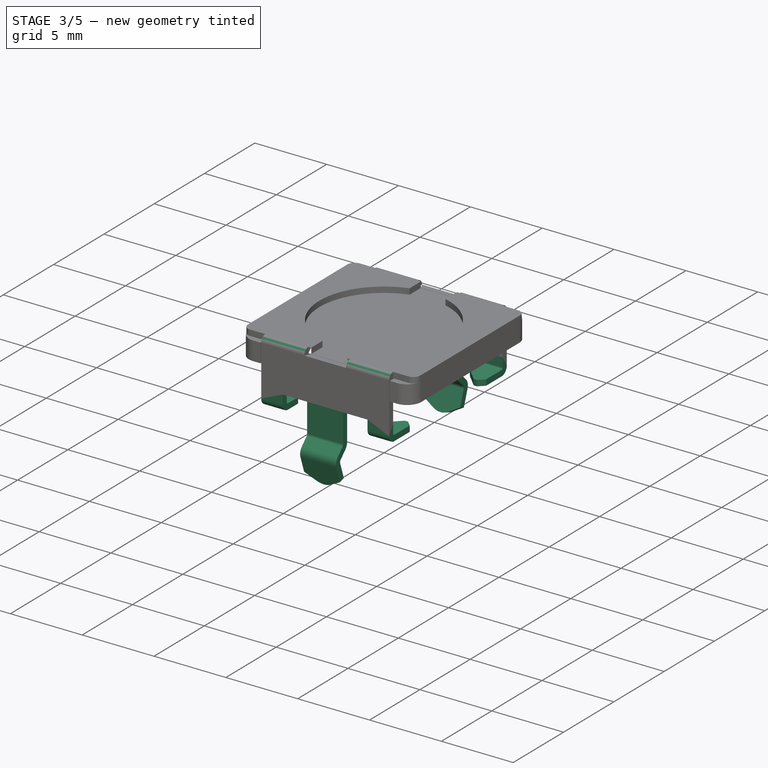
[diagram: stage 3 of 5 — iso view after this stage's code; geometry added in this stage tinted green]
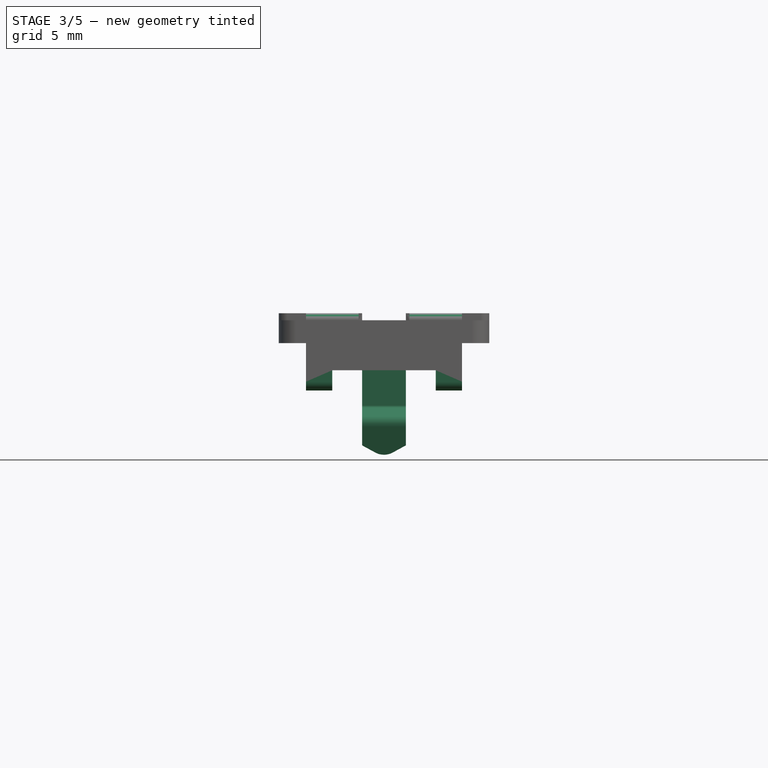
[diagram: stage 3 of 5 — front view after this stage's code; geometry added in this stage tinted green]
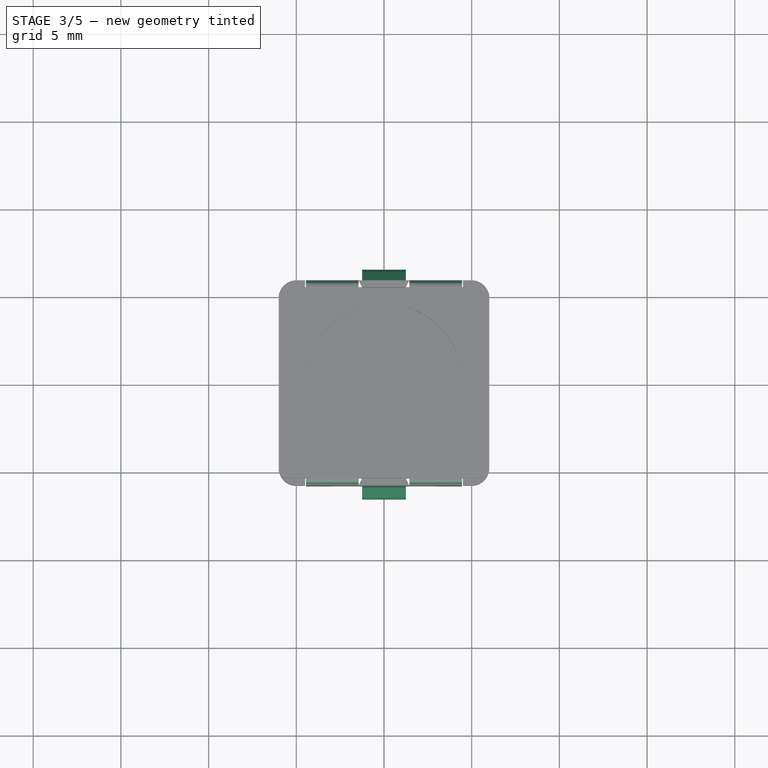
[diagram: stage 3 of 5 — top view after this stage's code; geometry added in this stage tinted green]
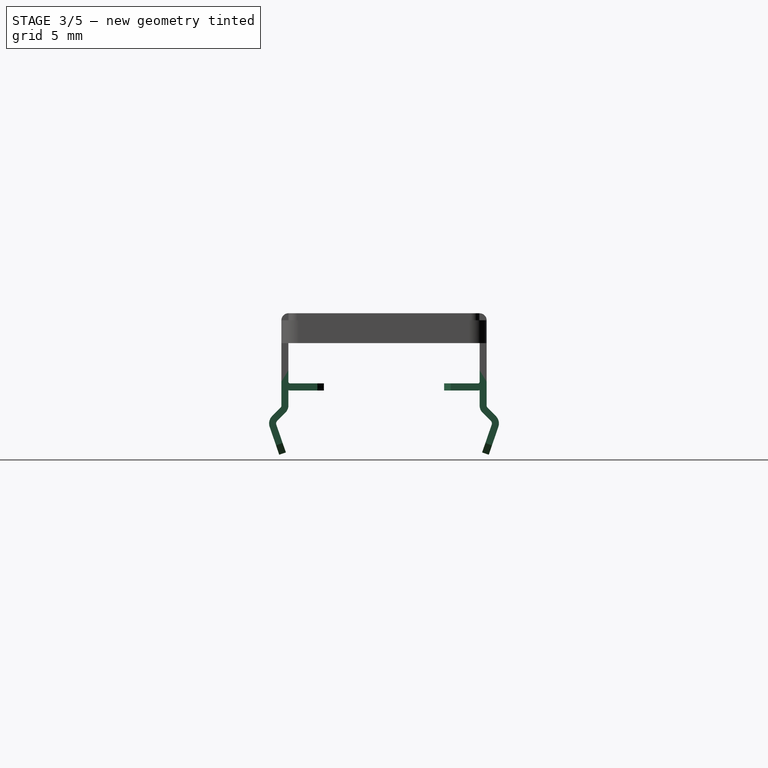
[diagram: stage 3 of 5 — right view after this stage's code; geometry added in this stage tinted green]
FEATURE [PartDesign::Fillet] Fillet001  label="FilletFold"
  Base = -> Mirrored001 [Edge163,Edge159,Edge175,Edge178]
  BaseFeature = -> Mirrored001
  Radius = 0.4
  Refine = true
  SupportTransform = false
  Suppressed = false
  UseAllEdges = false
FEATURE [Sketcher::SketchObject] Sketch008
  ArcFitTolerance = 1e-06
  AttachmentSupport = -> [Fillet001]
  ExternalGeometry = -> [Fillet001]
  FullyConstrained = true
  MakeInternals = false
  MapMode = 5
  Placement = pos=(0,3e-16,1.25) rot=(1,0,0;3.14159rad)
  sketch-geometry (4):
    g0: LineSegment StartX=-1.25 StartY=5.85 StartZ=0 EndX=-1.25 EndY=5.45 EndZ=0
    g1: LineSegment StartX=-1.25 StartY=5.45 StartZ=0 EndX=1.25 EndY=5.45 EndZ=0
    g2: LineSegment StartX=1.25 StartY=5.45 StartZ=0 EndX=1.25 EndY=5.85 EndZ=0
    g3: LineSegment StartX=1.25 StartY=5.85 StartZ=0 EndX=-1.25 EndY=5.85 EndZ=0
  constraints (11):
    c: Coincident(g0,g1)
    c: Coincident(g1,g2)
    c: Coincident(g2,g3)
    c: Coincident(g3,g0)
    c: Vertical(g0)
    c: Vertical(g2)
    c: Horizontal(g1)
    c: PointOnObject(g0,g-3)
    c: PointOnObject(g1,g-4)
    c: Symmetric(g0,g2,g-2)
    c: DistanceX(g3,g3) = 2.5
FEATURE [Sketcher::SketchObject] Sketch009
  ArcFitTolerance = 1e-06
  AttachmentSupport = -> [YZ_Plane002]
  ExternalGeometry = -> [Fillet001]
  FullyConstrained = true
  MakeInternals = false
  MapMode = 5
  Placement = pos=(0,0,0) rot=(0.57735,0.57735,0.57735;2.0944rad)
  sketch-geometry (5):
    g0: LineSegment StartX=-5.65 StartY=1.25 StartZ=0 EndX=-5.65 EndY=-0.75 EndZ=0
    g1: LineSegment StartX=-5.76716 StartY=-1.03284 StartZ=0 EndX=-6.23385 EndY=-1.49953 EndZ=0
    g2: LineSegment StartX=-6.32921 StartY=-1.9126 StartZ=0 EndX=-5.78263 EndY=-3.5 EndZ=0
    g3: ArcOfCircle CenterX=-5.95101 CenterY=-1.78238 CenterZ=0 NormalX=0 NormalY=0 NormalZ=1 AngleXU=0 Radius=0.4 StartAngle=2.35619 EndAngle=3.47321
    g4: ArcOfCircle CenterX=-6.05 CenterY=-0.75 CenterZ=0 NormalX=0 NormalY=0 NormalZ=1 AngleXU=0 Radius=0.4 StartAngle=5.49779 EndAngle=6.28319
  constraints (13):
    c: Symmetric(g-3,g-3,g0)
    c: Vertical(g0)
    c: Tangent(g3,g1) = -1.5708
    c: Tangent(g3,g2) = -1.5708
    c: Tangent(g4,g1) = 1.5708
    c: Equal(g3,g4)
    c: Radius(g3) = 0.4
    c: DistanceY(g0,g0) = 2
    c: Angle(g1,g0) = 0.785398
    c: Tangent(g4,g0) = 1.5708
    c: Angle(g0,g2) = 0.331613
    c: Distance(g1,g1) = 0.66
    c: Distance(g2,g-1) = 3.5
FEATURE [PartDesign::AdditivePipe] AdditivePipe  label="MountingPin"
  AuxilleryCurvelinear = true
  AuxillerySpineTangent = false
  BaseFeature = -> Fillet001
  Binormal = (0,0,0)
  Mode = 0
  Profile = -> Sketch008
  Refine = true
  Spine = -> Sketch009
  SpineTangent = false
  Suppressed = false
  Transformation = 0
  Transition = 0
FEATURE [PartDesign::Mirrored] Mirrored002  label="MirrorMountingPin"
  BaseFeature = -> AdditivePipe
  MirrorPlane = -> XZ_Plane002
  Originals = -> [AdditivePipe]
  Refine = true
  Suppressed = false
  TransformMode = 0
FEATURE [Sketcher::SketchObject] Sketch010
  ArcFitTolerance = 1e-06
  AttachmentSupport = -> [Mirrored002]
  ExternalGeometry = -> [Mirrored002]
  FullyConstrained = true
  MakeInternals = false
  MapMode = 5
  Placement = pos=(0,-6.43621,-2.21617) rot=(1,0,0;1.90241rad)
  sketch-geometry (6):
    g0: LineSegment StartX=-1.25 StartY=-0.859688 StartZ=0 EndX=-0.5 EndY=-1.2927 EndZ=0
    g1: LineSegment StartX=0.5 StartY=-1.2927 StartZ=0 EndX=1.25 EndY=-0.859688 EndZ=0
    g2: ArcOfCircle CenterX=0 CenterY=-0.426676 CenterZ=0 NormalX=0 NormalY=0 NormalZ=1 AngleXU=0 Radius=1 StartAngle=4.18879 EndAngle=5.23599
    g3: LineSegment StartX=-1.25 StartY=-0.859688 StartZ=0 EndX=-1.25 EndY=-1.42668 EndZ=0
    g4: LineSegment StartX=-1.25 StartY=-1.42668 StartZ=0 EndX=1.25 EndY=-1.42668 EndZ=0
    g5: LineSegment StartX=1.25 StartY=-1.42668 StartZ=0 EndX=1.25 EndY=-0.859688 EndZ=0
  constraints (15):
    c: PointOnObject(g0,g-3)
    c: PointOnObject(g1,g-5)
    c: Tangent(g2,g1) = -1.5708
    c: Tangent(g2,g0) = -1.5708
    c: Tangent(g2,g-4)
    c: Angle(g1,g0) = 2.0944
    c: Horizontal(g0,g1)
    c: Radius(g2) = 1
    c: Equal(g0,g1)
    c: Coincident(g3,g0)
    c: Coincident(g3,g-4)
    c: Coincident(g4,g-4)
    c: Coincident(g4,g-5)
    c: Coincident(g5,g-5)
    c: Coincident(g5,g1)
FEATURE [PartDesign::Pocket] Pocket001  label="MountingPinTip"
  BaseFeature = -> Mirrored002
  Direction = (0,0.945519,0.325568)
  Length = 5
  Length2 = 5
  Profile = -> Sketch010
  ReferenceAxis = -> Sketch010 [N_Axis]
  Refine = true
  Suppressed = false
  Type = 2
FEATURE [PartDesign::Mirrored] Mirrored003
  BaseFeature = -> Pocket001
  MirrorPlane = -> XZ_Plane002
  Originals = -> [Pocket001]
  Refine = true
  Suppressed = false
  TransformMode = 0
FEATURE [PartDesign::Body] Body006  label="PinB"
  AllowCompound = false
  Group = -> [Clone001,Sketch027,Pad012]
  Origin = -> Origin008
  Placement = pos=(0,-2.5,0) rot=(0,0,1;0rad)
  Tip = -> Pad012
FEATURE [App::Part] Part001  label="Pins"
  Group = -> [Body004,Body005,Body006,Body007,Body008]
  Origin = -> Origin005
FEATURE [Sketcher::SketchObject] Sketch028
  ArcFitTolerance = 1e-06
  AttachmentSupport = -> [Mirrored003]
  ExternalGeometry = -> [Mirrored003]
  FullyConstrained = true
  MakeInternals = false
  MapMode = 5
  Placement = pos=(0,3e-16,1.25) rot=(1,0,0;3.14159rad)
  sketch-geometry (8):
    g0: LineSegment StartX=-4.45 StartY=5.85 StartZ=0 EndX=-4.45 EndY=5.45 EndZ=0
    g1: LineSegment StartX=-4.45 StartY=5.45 StartZ=0 EndX=-2.95 EndY=5.45 EndZ=0
    g2: LineSegment StartX=-2.95 StartY=5.45 StartZ=0 EndX=-2.95 EndY=5.85 EndZ=0
    g3: LineSegment StartX=-2.95 StartY=5.85 StartZ=0 EndX=-4.45 EndY=5.85 EndZ=0
    g4: LineSegment StartX=4.45 StartY=5.85 StartZ=0 EndX=2.95 EndY=5.85 EndZ=0
    g5: LineSegment StartX=2.95 StartY=5.85 StartZ=0 EndX=2.95 EndY=5.45 EndZ=0
    g6: LineSegment StartX=2.95 StartY=5.45 StartZ=0 EndX=4.45 EndY=5.45 EndZ=0
    g7: LineSegment StartX=4.45 StartY=5.45 StartZ=0 EndX=4.45 EndY=5.85 EndZ=0
  constraints (20):
    c: Coincident(g0,g1)
    c: Coincident(g1,g2)
    c: Coincident(g2,g3)
    c: Coincident(g3,g0)
    c: Vertical(g2)
    c: Horizontal(g1)
    c: Horizontal(g3)
    c: Coincident(g0,g-3)
    c: Coincident(g-3,g0)
    c: DistanceX(g3,g3) = 1.5
    c: Coincident(g4,g5)
    c: Coincident(g5,g6)
    c: Coincident(g6,g7)
    c: Coincident(g7,g4)
    c: Horizontal(g4)
    c: Horizontal(g6)
    c: Vertical(g5)
    c: Coincident(g4,g-4)
    c: Coincident(g6,g-4)
    c: Equal(g4,g3)
FEATURE [PartDesign::Pad] Pad013  label="BottomTabsPad"
  BaseFeature = -> Mirrored003
  Direction = (0,0,-1)
  Length = 0.65
  Length2 = 10
  Profile = -> Sketch028
  ReferenceAxis = -> Sketch028 [N_Axis]
  Refine = true
  Suppressed = false
  Type = 0
FEATURE [PartDesign::Mirrored] Mirrored006  label="MirrorBottomTabsPad"
  BaseFeature = -> Pad013
  MirrorPlane = -> XZ_Plane002
  Originals = -> [Pad013]
  Refine = true
  Suppressed = false
  TransformMode = 0
FEATURE [PartDesign::FeaturePython] Bend  label="BottomTabsBend"  # WARN: FeaturePython — macro-defined, semantics opaque (R4)
  AutoMiter = true
  BaseFeature = -> Mirrored006
  BendType = 0
  LengthList = [1.925]
  LengthSpec = 0
  NonperforationMaxLength = 5
  OffsetType = 1
  OffsetTypeOffset = 0
  Perforate = false
  PerforationAngle = 0
  PerforationInitialLength = 5
  PerforationMaxLength = 5
  RelativeAngleToRef = 0
  ReliefFactor = 0.7
  SupplAngleRef = false
  Suppressed = false
  UseReliefFactor = false
  angle = 90
  baseObject = -> Mirrored006 [Edge52,Edge45,Edge273,Edge277]
  bendAList = [90]
  extend1 = 0
  extend2 = 0
  gap1 = 0
  gap2 = 0
  invert = false
  kfactor = 0.5
  length = 1.925
  maxExtendDist = 5
  minGap = 0.2
  minReliefGap = 1
  miterangle1 = 0
  miterangle2 = 0
  offset = 0
  radius = 0.1
  reliefType = 0
  reliefd = 1
  reliefw = 0.8
  sketchflip = false
  sketchinvert = false
  unfold = false
FEATURE [Sketcher::SketchObject] Sketch029
  ArcFitTolerance = 1e-06
  AttachmentSupport = -> [Bend]
  ExternalGeometry = -> [Bend]
  FullyConstrained = true
  MakeInternals = false
  MapMode = 5
  Placement = pos=(0,-1e-16,0.1) rot=(1,0,0;3.14159rad)
  sketch-geometry (24):
    g0: LineSegment StartX=-4.45 StartY=-3.425 StartZ=0 EndX=-4.45 EndY=-3.8 EndZ=0
    g1: LineSegment StartX=-4.45 StartY=-3.8 StartZ=0 EndX=-4.075 EndY=-3.425 EndZ=0
    g2: LineSegment StartX=-4.075 StartY=-3.425 StartZ=0 EndX=-4.45 EndY=-3.425 EndZ=0
    g3: LineSegment StartX=-3.85 StartY=-3.425 StartZ=0 EndX=-2.95 EndY=-3.425 EndZ=0
    g4: LineSegment StartX=-2.95 StartY=-3.425 StartZ=0 EndX=-2.95 EndY=-4.325 EndZ=0
    g5: LineSegment StartX=-2.95 StartY=-4.325 StartZ=0 EndX=-3.85 EndY=-3.425 EndZ=0
    g6: LineSegment StartX=4.45 StartY=-3.425 StartZ=0 EndX=4.45 EndY=-3.8 EndZ=0
    g7: LineSegment StartX=4.45 StartY=-3.8 StartZ=0 EndX=4.075 EndY=-3.425 EndZ=0
    g8: LineSegment StartX=4.075 StartY=-3.425 StartZ=0 EndX=4.45 EndY=-3.425 EndZ=0
    g9: LineSegment StartX=3.85 StartY=-3.425 StartZ=0 EndX=2.95 EndY=-3.425 EndZ=0
    g10: LineSegment StartX=2.95 StartY=-3.425 StartZ=0 EndX=2.95 EndY=-4.325 EndZ=0
    g11: LineSegment StartX=2.95 StartY=-4.325 StartZ=0 EndX=3.85 EndY=-3.425 EndZ=0
    g12: LineSegment StartX=-4.45 StartY=3.425 StartZ=0 EndX=-4.45 EndY=3.8 EndZ=0
    g13: LineSegment StartX=-4.45 StartY=3.8 StartZ=0 EndX=-4.075 EndY=3.425 EndZ=0
    g14: LineSegment StartX=-4.075 StartY=3.425 StartZ=0 EndX=-4.45 EndY=3.425 EndZ=0
    g15: LineSegment StartX=-3.85 StartY=3.425 StartZ=0 EndX=-2.95 EndY=3.425 EndZ=0
    g16: LineSegment StartX=-2.95 StartY=3.425 StartZ=0 EndX=-2.95 EndY=4.325 EndZ=0
    g17: LineSegment StartX=-2.95 StartY=4.325 StartZ=0 EndX=-3.85 EndY=3.425 EndZ=0
    g18: LineSegment StartX=4.45 StartY=3.425 StartZ=0 EndX=4.45 EndY=3.8 EndZ=0
    g19: LineSegment StartX=4.45 StartY=3.8 StartZ=0 EndX=4.075 EndY=3.425 EndZ=0
    g20: LineSegment StartX=4.075 StartY=3.425 StartZ=0 EndX=4.45 EndY=3.425 EndZ=0
    g21: LineSegment StartX=3.85 StartY=3.425 StartZ=0 EndX=2.95 EndY=3.425 EndZ=0
    g22: LineSegment StartX=2.95 StartY=3.425 StartZ=0 EndX=2.95 EndY=4.325 EndZ=0
    g23: LineSegment StartX=2.95 StartY=4.325 StartZ=0 EndX=3.85 EndY=3.425 EndZ=0
  constraints (52):
    c: Coincident(g-3,g0)
    c: Vertical(g0)
    c: Coincident(g0,g1)
    c: PointOnObject(g1,g-3)
    c: Coincident(g1,g2)
    c: Coincident(g2,g0)
    c: PointOnObject(g3,g-3)
    c: Coincident(g3,g-3)
    c: Coincident(g3,g4)
    c: Vertical(g4)
    c: Coincident(g4,g5)
    c: Coincident(g5,g3)
    c: DistanceY(g0,g0) = 0.375
    c: Equal(g2,g0)
    c: Equal(g3,g4)
    c: DistanceX(g3,g3) = 0.9
    c: Symmetric(g0,g6,g-2)
    c: Symmetric(g0,g6,g-2)
    c: Symmetric(g1,g7,g-2)
    c: Symmetric(g1,g7,g-2)
    c: Symmetric(g2,g8,g-2)
    c: Symmetric(g2,g8,g-2)
    c: Symmetric(g3,g9,g-2)
    c: Symmetric(g3,g9,g-2)
    c: Symmetric(g4,g10,g-2)
    c: Symmetric(g4,g10,g-2)
    c: Symmetric(g5,g11,g-2)
    c: Symmetric(g5,g11,g-2)
    c: Symmetric(g0,g12,g-1)
    c: Symmetric(g0,g12,g-1)
    c: Symmetric(g1,g13,g-1)
    c: Symmetric(g1,g13,g-1)
    c: Symmetric(g2,g14,g-1)
    c: Symmetric(g2,g14,g-1)
    c: Symmetric(g3,g15,g-1)
    c: Symmetric(g3,g15,g-1)
    c: Symmetric(g4,g16,g-1)
    c: Symmetric(g4,g16,g-1)
    c: Symmetric(g5,g17,g-1)
    c: Symmetric(g5,g17,g-1)
    c: Symmetric(g6,g18,g-1)
    c: Symmetric(g6,g18,g-1)
    c: Symmetric(g7,g19,g-1)
    c: Symmetric(g7,g19,g-1)
    c: Symmetric(g8,g20,g-1)
    c: Symmetric(g8,g20,g-1)
    c: Symmetric(g9,g21,g-1)
    c: Symmetric(g9,g21,g-1)
    c: Symmetric(g10,g22,g-1)
    c: Symmetric(g10,g22,g-1)
    c: Symmetric(g11,g23,g-1)
    c: Symmetric(g11,g23,g-1)
FEATURE [PartDesign::Pocket] Pocket010  label="BottomTabsEndCut"
  BaseFeature = -> Bend
  Direction = (0,0,1)
  Length = 5
  Length2 = 5
  Profile = -> Sketch029
  ReferenceAxis = -> Sketch029 [N_Axis]
  Refine = true
  Suppressed = false
  Type = 2
FEATURE [PartDesign::Body] Body001  label="Shell"
  AllowCompound = false
  Group = -> [Binder,Sketch001,Pad001,Sketch002,Pad002,Sketch007,Pad005,Mirrored001,Fillet001,Sketch008,Sketch009,AdditivePipe,Mirrored002,Sketch010,Pocket001,Mirrored003,Sketch028,Pad013,Mirrored006,Bend,Sketch029,Pocket010]
  Origin = -> Origin002
  Tip = -> Pocket010
FEATURE [App::Part] Part002  label="Parts"
  Group = -> [Body,Body001,Body002,Body003,Part001]
  Origin = -> Origin011
  Placement = pos=(7.5,-2.5,0) rot=(0,0,1;0rad)
FEATURE [App::Part] Part  label="RotaryEncoder_Alps_EC11E"
  Group = -> [Part002]
  Origin = -> Origin
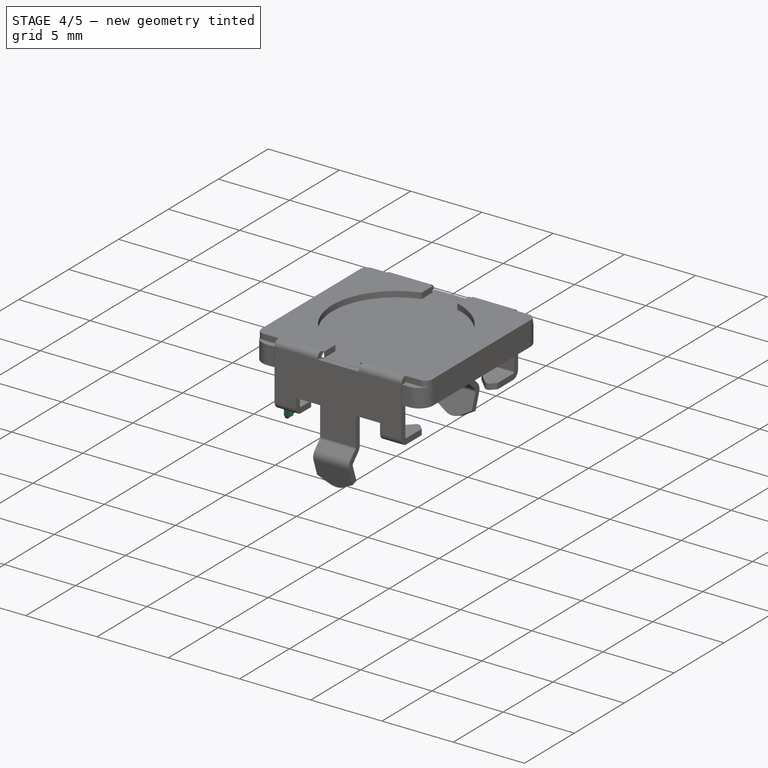
[diagram: stage 4 of 5 — iso view after this stage's code; geometry added in this stage tinted green]
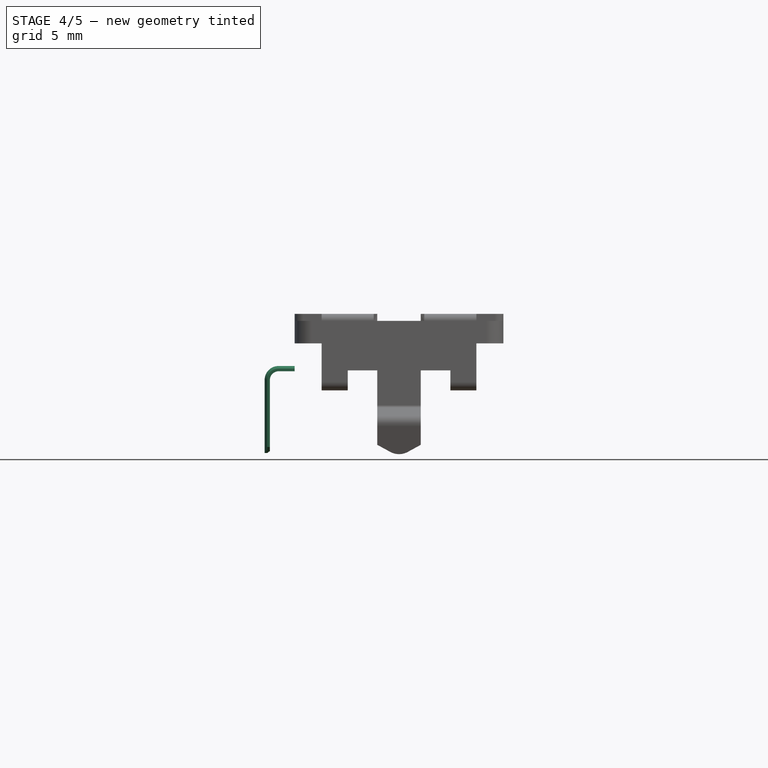
[diagram: stage 4 of 5 — front view after this stage's code; geometry added in this stage tinted green]
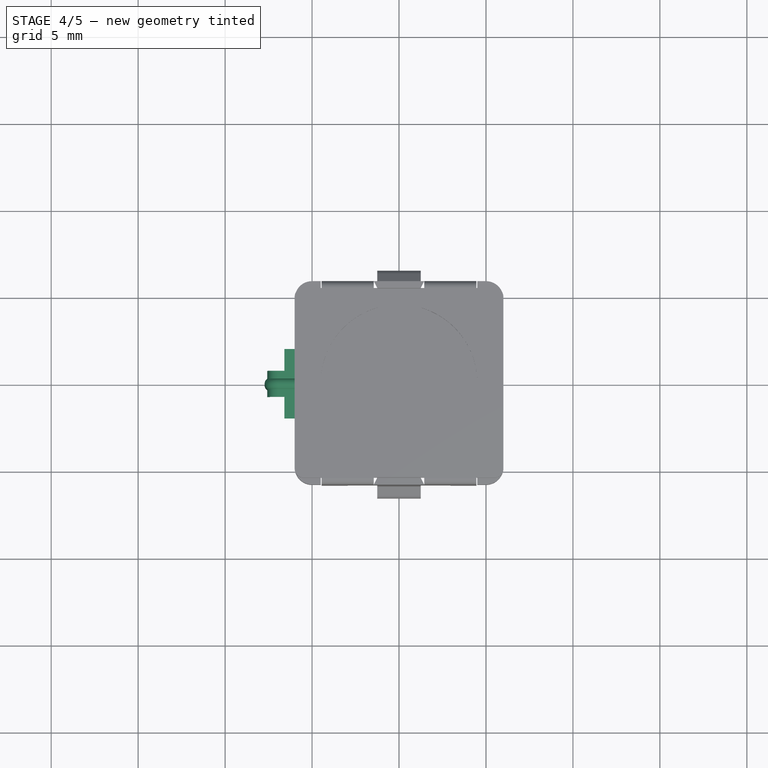
[diagram: stage 4 of 5 — top view after this stage's code; geometry added in this stage tinted green]
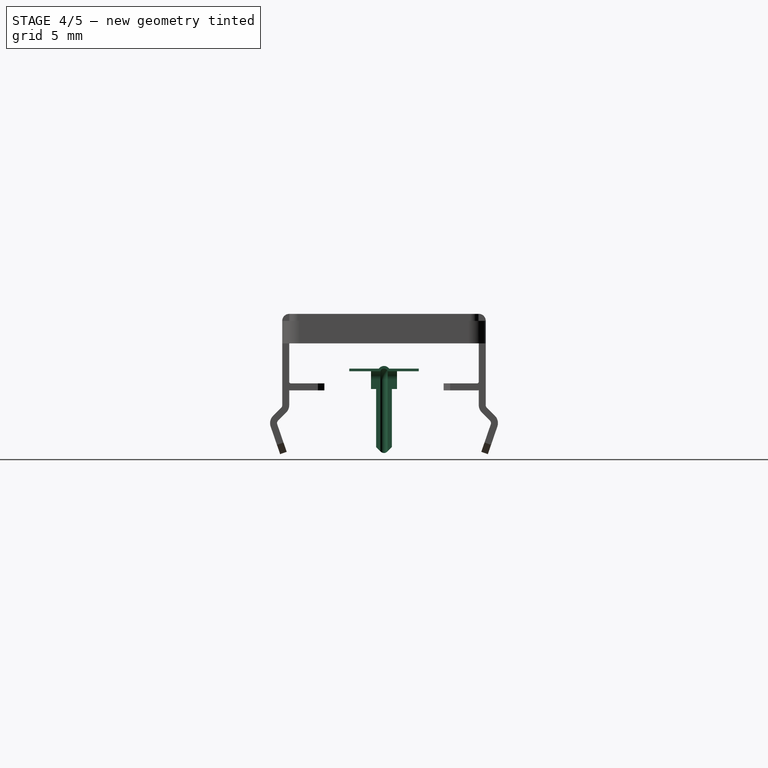
[diagram: stage 4 of 5 — right view after this stage's code; geometry added in this stage tinted green]
FEATURE [PartDesign::SubShapeBinder] Binder003
  BindCopyOnChange = 0
  BindMode = 0
  ClaimChildren = false
  Context = -> Part [Part001.Body004.Binder003.]
  Fuse = false
  MakeFace = true
  OffsetFill = false
  OffsetIntersection = false
  OffsetJoinType = 0
  OffsetOpenResult = false
  PartialLoad = false
  Refine = true
  Relative = true
  Support = -> [Body]
  _Version = 2
FEATURE [Sketcher::SketchObject] Sketch011
  ArcFitTolerance = 1e-06
  AttachmentSupport = -> [Binder003]
  FullyConstrained = true
  MakeInternals = false
  MapMode = 5
  Placement = pos=(-6,0,0) rot=(0.57735,-0.57735,-0.57735;2.0944rad)
  sketch-geometry (8):
    g0: LineSegment StartX=-0.209688 StartY=1.2 StartZ=0 EndX=-0.75 EndY=1.2 EndZ=0
    g1: LineSegment StartX=-0.75 StartY=1.2 StartZ=0 EndX=-0.75 EndY=1.35 EndZ=0
    g2: LineSegment StartX=-0.75 StartY=1.35 StartZ=0 EndX=-0.3 EndY=1.35 EndZ=0
    g3: LineSegment StartX=0.209688 StartY=1.2 StartZ=0 EndX=0.75 EndY=1.2 EndZ=0
    g4: LineSegment StartX=0.75 StartY=1.2 StartZ=0 EndX=0.75 EndY=1.35 EndZ=0
    g5: LineSegment StartX=0.75 StartY=1.35 StartZ=0 EndX=0.3 EndY=1.35 EndZ=0
    g6: ArcOfCircle CenterX=0 CenterY=1.13344 CenterZ=0 NormalX=0 NormalY=0 NormalZ=1 AngleXU=0 Radius=0.37 StartAngle=0.62526 EndAngle=2.51633
    g7: ArcOfCircle CenterX=0 CenterY=1.13344 CenterZ=0 NormalX=0 NormalY=0 NormalZ=1 AngleXU=0 Radius=0.22 StartAngle=0.307382 EndAngle=2.83421
  constraints (25):
    c: Horizontal(g0)
    c: Coincident(g1,g0)
    c: Vertical(g1)
    c: Coincident(g2,g1)
    c: Horizontal(g2)
    c: Horizontal(g3)
    c: Coincident(g4,g3)
    c: Vertical(g4)
    c: Coincident(g5,g4)
    c: Horizontal(g5)
    c: Coincident(g6,g2)
    c: Coincident(g6,g5)
    c: DistanceY(g1,g1) = 0.15
    c: Equal(g1,g4)
    c: DistanceX(g0,g3) = 1.5
    c: Coincident(g7,g0)
    c: Coincident(g7,g3)
    c: Horizontal(g2,g5)
    c: Coincident(g7,g6)
    c: Equal(g2,g5)
    c: Radius(g6) = 0.37
    c: DistanceY(g-1,g0) = 1.2
    c: PointOnObject(g6,g-2)
    c: Distance(g7,g6) = 0.15
    c: DistanceX(g2,g5) = 0.6
FEATURE [Sketcher::SketchObject] Sketch012
  ArcFitTolerance = 1e-06
  AttachmentSupport = -> [XZ_Plane006]
  ExternalGeometry = -> [Sketch011]
  FullyConstrained = true
  MakeInternals = false
  MapMode = 5
  Placement = pos=(0,0,0) rot=(1,0,0;1.5708rad)
  sketch-geometry (4):
    g0: LineSegment StartX=-6 StartY=1.275 StartZ=0 EndX=-6.925 EndY=1.275 EndZ=0
    g1: LineSegment StartX=-7.5 StartY=0.7 StartZ=0 EndX=-7.5 EndY=-3.5 EndZ=0
    g2: ArcOfCircle CenterX=-6.925 CenterY=0.7 CenterZ=0 NormalX=0 NormalY=0 NormalZ=1 AngleXU=0 Radius=0.575 StartAngle=1.5708 EndAngle=3.14159
    g3: GeomPoint [constr] X=-7.5 Y=1.275 Z=0
  constraints (10):
    c: Symmetric(g-3,g-3,g0)
    c: Horizontal(g0)
    c: Vertical(g1)
    c: Distance(g1,g-1) = 3.5
    c: DistanceX(g3,g0) = 1.5
    c: PointOnObject(g3,g0)
    c: PointOnObject(g3,g1)
    c: Tangent(g0,g2) = -1.5708
    c: Tangent(g1,g2) = -1.5708
    c: Radius(g2) = 0.575
FEATURE [PartDesign::AdditivePipe] AdditivePipe001
  AuxilleryCurvelinear = true
  AuxillerySpineTangent = false
  Binormal = (0,0,0)
  Mode = 0
  Profile = -> Sketch011
  Refine = true
  Spine = -> Sketch012
  SpineTangent = false
  Suppressed = false
  Transformation = 0
  Transition = 0
FEATURE [Sketcher::SketchObject] Sketch013
  ArcFitTolerance = 1e-06
  AttachmentSupport = -> [AdditivePipe001]
  ExternalGeometry = -> [AdditivePipe001]
  FullyConstrained = true
  MakeInternals = false
  MapMode = 5
  Placement = pos=(-7.425,0,0) rot=(0.57735,0.57735,0.57735;2.0944rad)
  sketch-geometry (10):
    g0: LineSegment StartX=-0.75 StartY=0.18 StartZ=0 EndX=-0.45 EndY=0.18 EndZ=0
    g1: LineSegment StartX=-0.45 StartY=0.18 StartZ=0 EndX=-0.45 EndY=-3.1577 EndZ=0
    g2: LineSegment StartX=-0.45 StartY=-3.1577 StartZ=0 EndX=-0.183848 EndY=-3.42385 EndZ=0
    g3: LineSegment StartX=0.183848 StartY=-3.42385 StartZ=0 EndX=0.45 EndY=-3.1577 EndZ=0
    g4: LineSegment StartX=0.45 StartY=-3.1577 StartZ=0 EndX=0.45 EndY=0.18 EndZ=0
    g5: LineSegment StartX=0.45 StartY=0.18 StartZ=0 EndX=0.75 EndY=0.18 EndZ=0
    g6: LineSegment StartX=0.75 StartY=0.18 StartZ=0 EndX=0.75 EndY=-3.5 EndZ=0
    g7: LineSegment StartX=0.75 StartY=-3.5 StartZ=0 EndX=-0.75 EndY=-3.5 EndZ=0
    g8: LineSegment StartX=-0.75 StartY=-3.5 StartZ=0 EndX=-0.75 EndY=0.18 EndZ=0
    g9: ArcOfCircle CenterX=-2.045e-13 CenterY=-3.24 CenterZ=0 NormalX=0 NormalY=0 NormalZ=1 AngleXU=0 Radius=0.26 StartAngle=3.92699 EndAngle=5.49779
  constraints (27):
    c: PointOnObject(g0,g-7)
    c: Horizontal(g0)
    c: Coincident(g1,g0)
    c: Vertical(g1)
    c: Coincident(g2,g1)
    c: Vertical(g4)
    c: Coincident(g5,g4)
    c: PointOnObject(g5,g-5)
    c: Horizontal(g5)
    c: Coincident(g6,g5)
    c: Coincident(g6,g-5)
    c: Coincident(g7,g6)
    c: Coincident(g7,g-7)
    c: Coincident(g8,g7)
    c: Coincident(g8,g0)
    c: Tangent(g9,g7)
    c: Tangent(g9,g2) = -1.5708
    c: Tangent(g9,g3) = -1.5708
    c: Equal(g1,g4)
    c: Coincident(g4,g3)
    c: Equal(g5,g0)
    c: DistanceX(g0,g4) = 0.9
    c: Horizontal(g0,g4)
    c: Radius(g9) = 0.26
    c: Equal(g2,g3)
    c: Angle(g-2,g2) = 0.785398
    c: Distance(g0,g-1) = 0.18
FEATURE [PartDesign::Pocket] Pocket002
  BaseFeature = -> AdditivePipe001
  Direction = (-1,0,0)
  Length = 5
  Length2 = 5
  Profile = -> Sketch013
  ReferenceAxis = -> Sketch013 [N_Axis]
  Refine = true
  Suppressed = false
  Type = 1
FEATURE [PartDesign::Body] Body004  label="PinC"
  AllowCompound = false
  Group = -> [Binder003,Sketch011,Sketch012,AdditivePipe001,Sketch013,Pocket002]
  Origin = -> Origin006
  Tip = -> Pocket002
FEATURE [PartDesign::FeatureBase] Clone
  BaseFeature = -> Body004
  Suppressed = false
FEATURE [PartDesign::FeatureBase] Clone001
  BaseFeature = -> Body004
  Suppressed = false
FEATURE [PartDesign::FeatureBase] Clone002
  BaseFeature = -> Body004
  Suppressed = false
FEATURE [Sketcher::SketchObject] Sketch014
  ArcFitTolerance = 1e-06
  AttachmentSupport = -> [Clone002]
  ExternalGeometry = -> [Clone002]
  FullyConstrained = true
  MakeInternals = false
  MapMode = 5
  Placement = pos=(-6,0,0) rot=(0.57735,0.57735,0.57735;2.0944rad)
  sketch-geometry (8):
    g0: ArcOfCircle CenterX=8.9e-15 CenterY=1.13344 CenterZ=0 NormalX=0 NormalY=0 NormalZ=1 AngleXU=0 Radius=0.37 StartAngle=0.62526 EndAngle=2.51633
    g1: ArcOfCircle CenterX=0 CenterY=1.13344 CenterZ=0 NormalX=0 NormalY=0 NormalZ=1 AngleXU=0 Radius=0.22 StartAngle=0.307382 EndAngle=2.83421
    g2: LineSegment StartX=-0.3 StartY=1.35 StartZ=0 EndX=-0.75 EndY=1.35 EndZ=0
    g3: LineSegment StartX=-0.75 StartY=1.35 StartZ=0 EndX=-0.75 EndY=1.2 EndZ=0
    g4: LineSegment StartX=-0.75 StartY=1.2 StartZ=0 EndX=-0.209688 EndY=1.2 EndZ=0
    g5: LineSegment StartX=0.209688 StartY=1.2 StartZ=0 EndX=0.75 EndY=1.2 EndZ=0
    g6: LineSegment StartX=0.75 StartY=1.2 StartZ=0 EndX=0.75 EndY=1.35 EndZ=0
    g7: LineSegment StartX=0.75 StartY=1.35 StartZ=0 EndX=0.3 EndY=1.35 EndZ=0
  constraints (16):
    c: Tangent(g0,g-3) = -1.5708
    c: Coincident(g0,g-3)
    c: Tangent(g1,g-4) = -1.5708
    c: Coincident(g1,g-4)
    c: Coincident(g0,g2)
    c: Coincident(g2,g-6)
    c: Coincident(g2,g3)
    c: Coincident(g3,g-6)
    c: Coincident(g3,g4)
    c: Coincident(g4,g1)
    c: Coincident(g5,g-5)
    c: Coincident(g5,g6)
    c: Coincident(g6,g-5)
    c: Coincident(g6,g7)
    c: Coincident(g7,g0)
    c: Coincident(g5,g1)
FEATURE [PartDesign::Pocket] Pocket003
  BaseFeature = -> Clone002
  Direction = (-1,0,0)
  Length = 0.5
  Length2 = 5
  Profile = -> Sketch014
  ReferenceAxis = -> Sketch014 [N_Axis]
  Refine = true
  Suppressed = false
  Type = 0
FEATURE [PartDesign::Body] Body  label="Plastic"
  AllowCompound = false
  Group = -> [Sketch,Pad,Sketch015,Pocket004,Sketch016,Pocket005,Sketch017,Pocket006,Sketch018,Pocket007,Sketch019,Pad006,Mirrored004,Sketch020,Pocket008,Sketch021,Pocket009,Sketch022,Pad007,Mirrored005,Sketch025,Pad010]
  Origin = -> Origin001
  Tip = -> Pad010
FEATURE [Sketcher::SketchObject] Sketch026
  ArcFitTolerance = 1e-06
  AttachmentSupport = -> [Clone]
  ExternalGeometry = -> [Clone]
  FullyConstrained = true
  MakeInternals = false
  MapMode = 5
  Placement = pos=(0,0,1.2) rot=(1,0,0;3.14159rad)
  sketch-geometry (4):
    g0: LineSegment StartX=-6 StartY=-0.75 StartZ=0 EndX=-6.59 EndY=-0.75 EndZ=0
    g1: LineSegment StartX=-6.59 StartY=-0.75 StartZ=0 EndX=-6.59 EndY=-2 EndZ=0
    g2: LineSegment StartX=-6.59 StartY=-2 StartZ=0 EndX=-6 EndY=-2 EndZ=0
    g3: LineSegment StartX=-6 StartY=-2 StartZ=0 EndX=-6 EndY=-0.75 EndZ=0
  constraints (11):
    c: Coincident(g0,g1)
    c: Coincident(g1,g2)
    c: Coincident(g2,g3)
    c: Coincident(g3,g0)
    c: Horizontal(g0)
    c: Horizontal(g2)
    c: Vertical(g1)
    c: Vertical(g3)
    c: Coincident(g0,g-3)
    c: DistanceX(g2,g2) = 0.59
    c: Distance(g1,g1) = 1.25
FEATURE [PartDesign::Pad] Pad011
  BaseFeature = -> Clone
  Direction = (0,0,-1)
  Length = 10
  Length2 = 10
  Profile = -> Sketch026
  ReferenceAxis = -> Sketch026 [N_Axis]
  Refine = true
  Suppressed = false
  Type = 3
  UpToFace = -> Clone [Face5]
FEATURE [PartDesign::Body] Body005  label="PinA"
  AllowCompound = false
  Group = -> [Clone,Sketch026,Pad011]
  Origin = -> Origin007
  Placement = pos=(0,2.5,0) rot=(0,0,1;0rad)
  Tip = -> Pad011
FEATURE [Sketcher::SketchObject] Sketch027
  ArcFitTolerance = 1e-06
  AttachmentSupport = -> [Clone001]
  ExternalGeometry = -> [Clone001]
  FullyConstrained = true
  MakeInternals = false
  MapMode = 5
  Placement = pos=(0,0,1.2) rot=(1,0,0;3.14159rad)
  sketch-geometry (4):
    g0: LineSegment StartX=-6 StartY=0.75 StartZ=0 EndX=-6 EndY=2 EndZ=0
    g1: LineSegment StartX=-6 StartY=2 StartZ=0 EndX=-6.59 EndY=2 EndZ=0
    g2: LineSegment StartX=-6.59 StartY=2 StartZ=0 EndX=-6.59 EndY=0.75 EndZ=0
    g3: LineSegment StartX=-6.59 StartY=0.75 StartZ=0 EndX=-6 EndY=0.75 EndZ=0
  constraints (11):
    c: Coincident(g0,g1)
    c: Coincident(g1,g2)
    c: Coincident(g2,g3)
    c: Coincident(g3,g0)
    c: Vertical(g0)
    c: Vertical(g2)
    c: Horizontal(g1)
    c: Horizontal(g3)
    c: Coincident(g0,g-3)
    c: DistanceY(g2,g2) = 1.25
    c: Distance(g1,g1) = 0.59
FEATURE [PartDesign::Pad] Pad012
  BaseFeature = -> Clone001
  Direction = (0,0,-1)
  Length = 10
  Length2 = 10
  Profile = -> Sketch027
  ReferenceAxis = -> Sketch027 [N_Axis]
  Refine = true
  Suppressed = false
  Type = 3
  UpToFace = -> Clone001 [Face7]
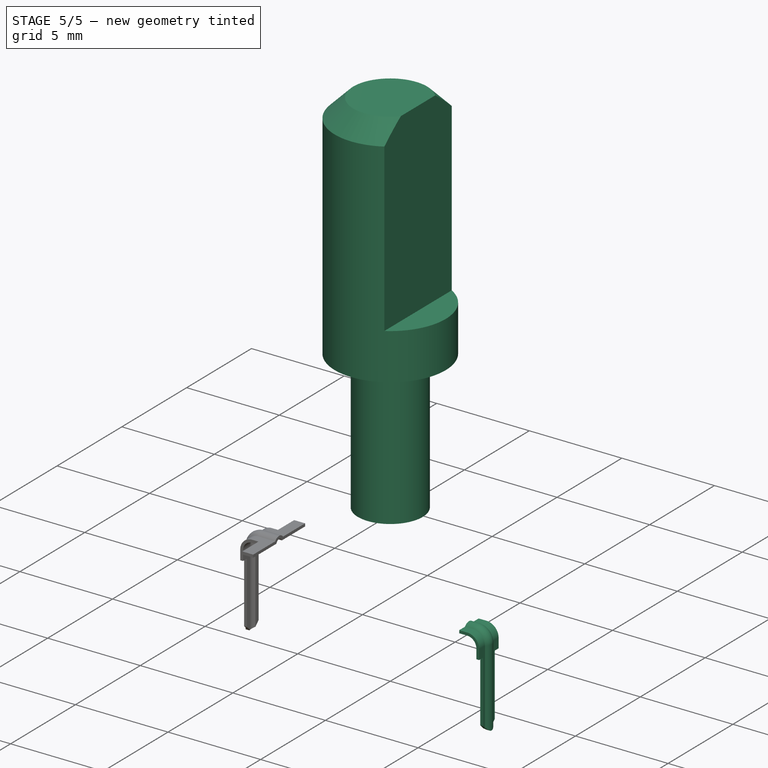
[diagram: stage 5 of 5 — iso view after this stage's code; geometry added in this stage tinted green]
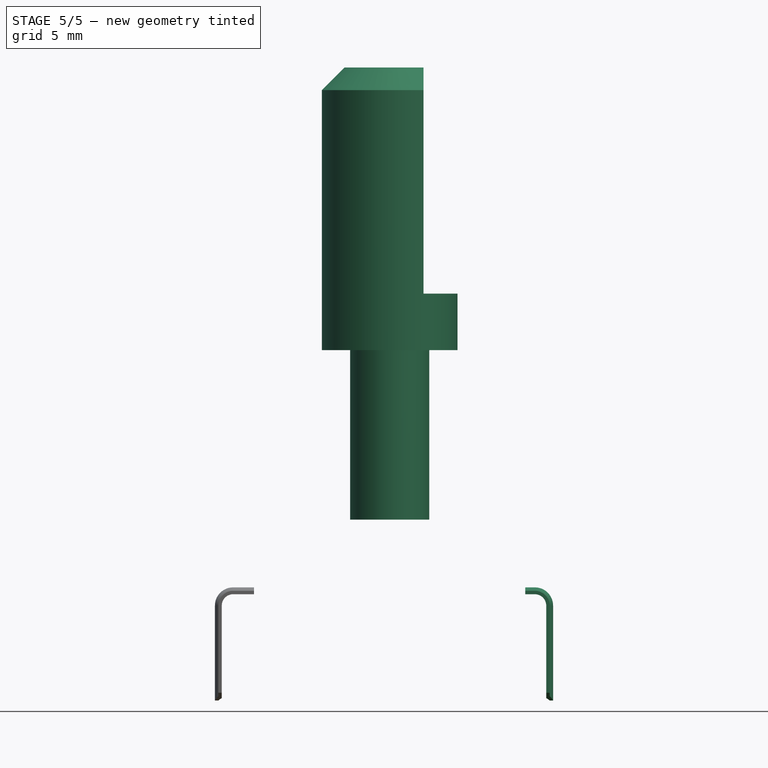
[diagram: stage 5 of 5 — front view after this stage's code; geometry added in this stage tinted green]
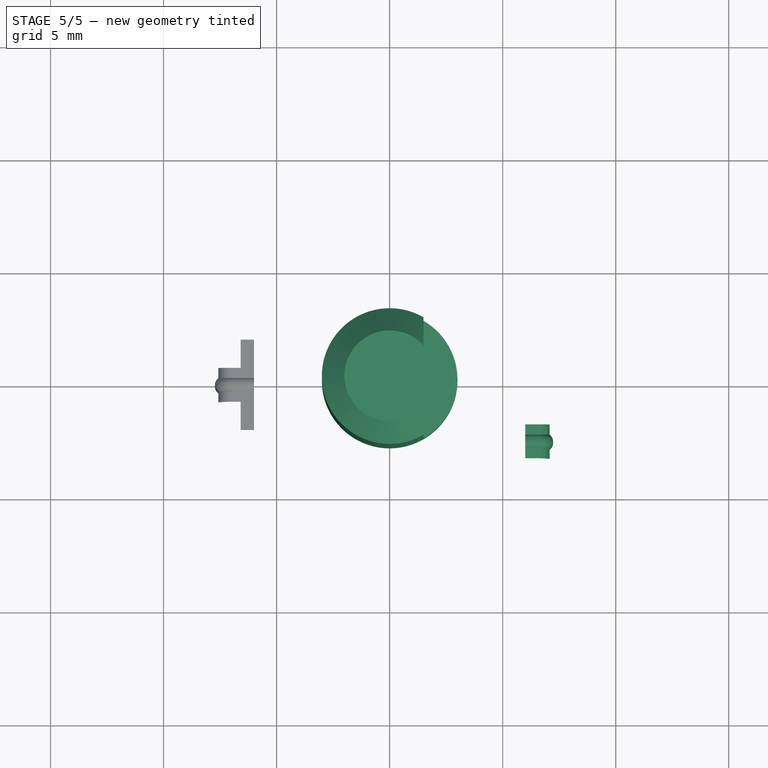
[diagram: stage 5 of 5 — top view after this stage's code; geometry added in this stage tinted green]
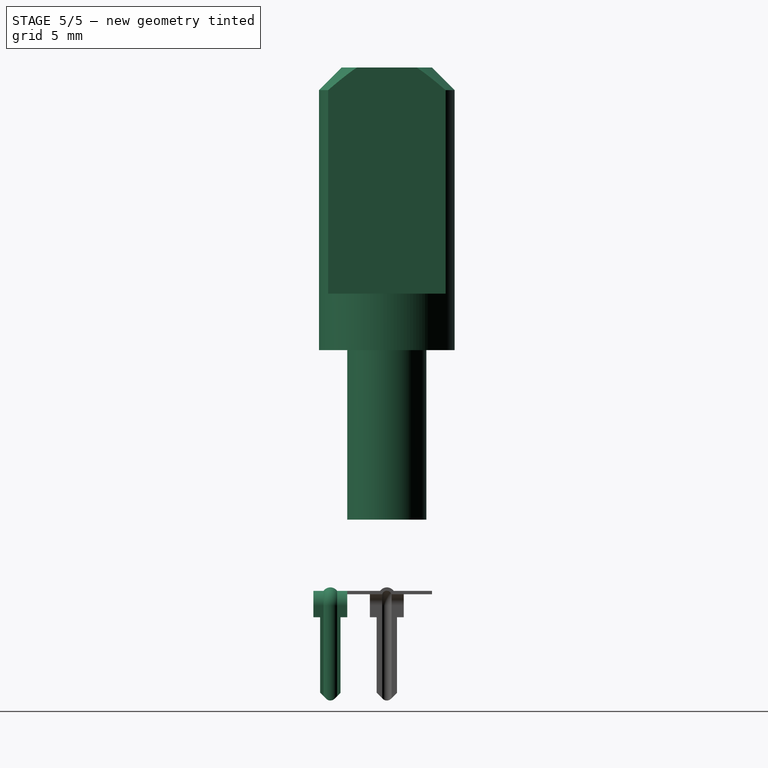
[diagram: stage 5 of 5 — right view after this stage's code; geometry added in this stage tinted green]
FEATURE [PartDesign::SubShapeBinder] Binder001
  BindCopyOnChange = 0
  BindMode = 0
  ClaimChildren = false
  Context = -> Part [Body002.Binder001.]
  Fuse = false
  MakeFace = true
  OffsetFill = false
  OffsetIntersection = false
  OffsetJoinType = 0
  OffsetOpenResult = false
  PartialLoad = false
  Refine = true
  Relative = true
  Support = -> [Body001]
  _Version = 2
FEATURE [Sketcher::SketchObject] Sketch003
  ArcFitTolerance = 1e-06
  AttachmentSupport = -> [Binder001]
  ExternalGeometry = -> [Binder001]
  FullyConstrained = true
  MakeInternals = false
  MapMode = 5
  Placement = pos=(0,0,4.1) rot=(0,0,1;0rad)
  sketch-geometry (6):
    g0: LineSegment StartX=0 StartY=5.384 StartZ=0 EndX=-1.2 EndY=5.384 EndZ=0
    g1: LineSegment StartX=-1.2 StartY=5.384 StartZ=0 EndX=-1.2 EndY=4.28515 EndZ=0
    g2: ArcOfCircle CenterX=0 CenterY=0 CenterZ=0 NormalX=0 NormalY=0 NormalZ=1 AngleXU=0 Radius=4.45 StartAngle=1.84384 EndAngle=4.43935
    g3: LineSegment StartX=-1.2 StartY=-4.28515 StartZ=0 EndX=-1.2 EndY=-5.384 EndZ=0
    g4: LineSegment StartX=-1.2 StartY=-5.384 StartZ=0 EndX=0 EndY=-5.384 EndZ=0
    g5: LineSegment StartX=0 StartY=5.384 StartZ=0 EndX=0 EndY=-5.384 EndZ=0
  constraints (18):
    c: PointOnObject(g0,g-2)
    c: Coincident(g0,g1)
    c: Vertical(g1)
    c: Coincident(g2,g-1)
    c: Coincident(g2,g1)
    c: Horizontal(g0)
    c: DistanceX(g-3,g1) = 0.05
    c: Distance(g0,g-4) = 0.05
    c: Distance(g2,g-5) = 0.05
    c: Coincident(g3,g2)
    c: Vertical(g3)
    c: Coincident(g4,g3)
    c: PointOnObject(g4,g-2)
    c: Horizontal(g4)
    c: Equal(g4,g0)
    c: Equal(g3,g1)
    c: Coincident(g5,g0)
    c: Coincident(g5,g4)
FEATURE [PartDesign::Pad] Pad003
  Direction = (0,0,1)
  Length = 0.4
  Length2 = 10
  Profile = -> Sketch003
  ReferenceAxis = -> Sketch003 [N_Axis]
  Refine = true
  Suppressed = false
  Type = 0
FEATURE [Sketcher::SketchObject] Sketch004
  ArcFitTolerance = 1e-06
  AttachmentSupport = -> [Pad003]
  FullyConstrained = true
  MakeInternals = false
  MapMode = 5
  Placement = pos=(0,0,4.5) rot=(0,0,1;0rad)
  sketch-geometry (2):
    g0: Circle CenterX=0 CenterY=0 CenterZ=0 NormalX=0 NormalY=0 NormalZ=1 AngleXU=0 Radius=3.5
    g1: Circle CenterX=0 CenterY=0 CenterZ=0 NormalX=0 NormalY=0 NormalZ=1 AngleXU=0 Radius=1.8
  constraints (4):
    c: Coincident(g0,g-1)
    c: Coincident(g1,g0)
    c: Diameter(g0) = 7
    c: Diameter(g1) = 3.6
FEATURE [PartDesign::Mirrored] Mirrored
  BaseFeature = -> Pad003
  MirrorPlane = -> Sketch003 [V_Axis]
  Originals = -> [Pad003]
  Refine = true
  Suppressed = false
  TransformMode = 0
FEATURE [PartDesign::Pad] Pad004
  BaseFeature = -> Mirrored
  Direction = (0,0,1)
  Length = 7
  Length2 = 10
  Profile = -> Sketch004
  ReferenceAxis = -> Sketch004 [N_Axis]
  Refine = true
  Suppressed = false
  Type = 0
FEATURE [PartDesign::Fillet] Fillet
  Base = -> Pad004 [Edge21]
  BaseFeature = -> Pad004
  Radius = 0.5
  Refine = true
  SupportTransform = false
  Suppressed = false
  UseAllEdges = false
FEATURE [PartDesign::Chamfer] Chamfer
  Angle = 45
  Base = -> Fillet [Edge29]
  BaseFeature = -> Fillet
  ChamferType = 0
  FlipDirection = false
  Refine = true
  Size = 0.5
  Size2 = 1
  SupportTransform = false
  Suppressed = false
  UseAllEdges = false
FEATURE [PartDesign::Body] Body002  label="ShaftBase"
  AllowCompound = false
  Group = -> [Binder001,Sketch003,Pad003,Mirrored,Sketch004,Pad004,Fillet,Chamfer]
  Origin = -> Origin003
  Tip = -> Chamfer
FEATURE [PartDesign::SubShapeBinder] Binder002
  BindCopyOnChange = 0
  BindMode = 0
  ClaimChildren = false
  Context = -> Part [Body003.Binder002.]
  Fuse = false
  MakeFace = true
  OffsetFill = false
  OffsetIntersection = false
  OffsetJoinType = 0
  OffsetOpenResult = false
  PartialLoad = false
  Refine = true
  Relative = true
  Support = -> [Body002]
  _Version = 2
FEATURE [Sketcher::SketchObject] Sketch005
  ArcFitTolerance = 1e-06
  AttachmentSupport = -> [XZ_Plane004]
  ExternalGeometry = -> [Binder002]
  FullyConstrained = true
  MakeInternals = false
  MapMode = 5
  Placement = pos=(0,0,0) rot=(1,0,0;1.5708rad)
  sketch-geometry (7):
    g0: LineSegment StartX=0 StartY=4.5 StartZ=0 EndX=0 EndY=24.5 EndZ=0
    g1: LineSegment StartX=0 StartY=4.5 StartZ=0 EndX=1.75 EndY=4.5 EndZ=0
    g2: LineSegment StartX=1.75 StartY=4.5 StartZ=0 EndX=1.75 EndY=12 EndZ=0
    g3: LineSegment StartX=1.75 StartY=12 StartZ=0 EndX=3 EndY=12 EndZ=0
    g4: LineSegment StartX=3 StartY=12 StartZ=0 EndX=3 EndY=23.5 EndZ=0
    g5: LineSegment StartX=3 StartY=23.5 StartZ=0 EndX=2 EndY=24.5 EndZ=0
    g6: LineSegment StartX=2 StartY=24.5 StartZ=0 EndX=0 EndY=24.5 EndZ=0
  constraints (21):
    c: PointOnObject(g0,g-2)
    c: PointOnObject(g0,g-2)
    c: Coincident(g1,g0)
    c: Horizontal(g1)
    c: Coincident(g2,g1)
    c: Vertical(g2)
    c: Coincident(g3,g2)
    c: Horizontal(g3)
    c: Coincident(g4,g3)
    c: Vertical(g4)
    c: Coincident(g5,g4)
    c: Horizontal(g6)
    c: Coincident(g0,g6)
    c: Coincident(g6,g5)
    c: PointOnObject(g0,g-4)
    c: Distance(g1,g-4) = 0.05
    c: Distance(g4,g0) = 3
    c: Angle(g5,g6) = 0.785398
    c: DistanceY(g0,g0) = 20
    c: DistanceX(g5,g4) = 1
    c: Distance(g-3,g3) = 0.5
FEATURE [PartDesign::Revolution] Revolution
  Angle = 360
  Angle2 = 60
  Axis = (0,2e-16,1)
  Base = (0,0,0)
  Placement = pos=(0,0,0) rot=(1,0,0;1.5708rad)
  Profile = -> Sketch005
  ReferenceAxis = -> Sketch005 [V_Axis]
  Refine = true
  Reversed = true
  Suppressed = false
  Type = 0
FEATURE [Sketcher::SketchObject] Sketch006
  ArcFitTolerance = 1e-06
  AttachmentSupport = -> [Revolution]
  ExternalGeometry = -> [Revolution]
  FullyConstrained = true
  MakeInternals = false
  MapMode = 5
  Placement = pos=(0,5.4e-15,24.5) rot=(0,0,1;3.14159rad)
  sketch-geometry (3):
    g0: ArcOfCircle CenterX=0 CenterY=0 CenterZ=0 NormalX=0 NormalY=0 NormalZ=1 AngleXU=0 Radius=3 StartAngle=2.0944 EndAngle=4.18879
    g1: LineSegment StartX=-1.5 StartY=2.59808 StartZ=0 EndX=-1.5 EndY=-2.59808 EndZ=0
    g2: GeomPoint X=3 Y=0 Z=0
  constraints (8):
    c: Coincident(g0,g-1)
    c: PointOnObject(g0,g-3)
    c: Coincident(g1,g0)
    c: Coincident(g1,g0)
    c: Vertical(g1)
    c: PointOnObject(g2,g-3)
    c: PointOnObject(g2,g-1)
    c: Distance(g2,g1) = 4.5
FEATURE [PartDesign::Pocket] Pocket
  BaseFeature = -> Revolution
  Direction = (0,0,-1)
  Length = 10
  Length2 = 5
  Placement = pos=(0,0,0) rot=(1,0,0;1.5708rad)
  Profile = -> Sketch006
  ReferenceAxis = -> Sketch006 [N_Axis]
  Refine = true
  Suppressed = false
  Type = 0
FEATURE [PartDesign::Body] Body007  label="PinS1"
  AllowCompound = false
  Group = -> [Clone002,Sketch014,Pocket003]
  Origin = -> Origin009
  Placement = pos=(-0.5,-2.5,0) rot=(0,0,1;3.14159rad)
  Tip = -> Pocket003
FEATURE [PartDesign::FeatureBase] Clone003
  BaseFeature = -> Body007
  Placement = pos=(-0.5,-2.5,0) rot=(0,0,1;3.14159rad)
  Suppressed = false
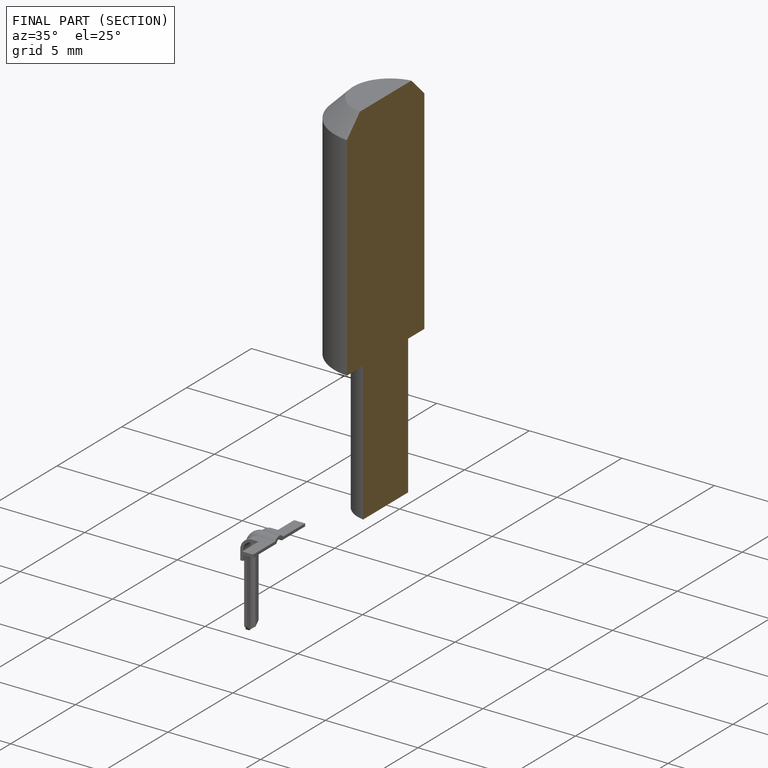
[diagram: finished part — half-section view (interior)]
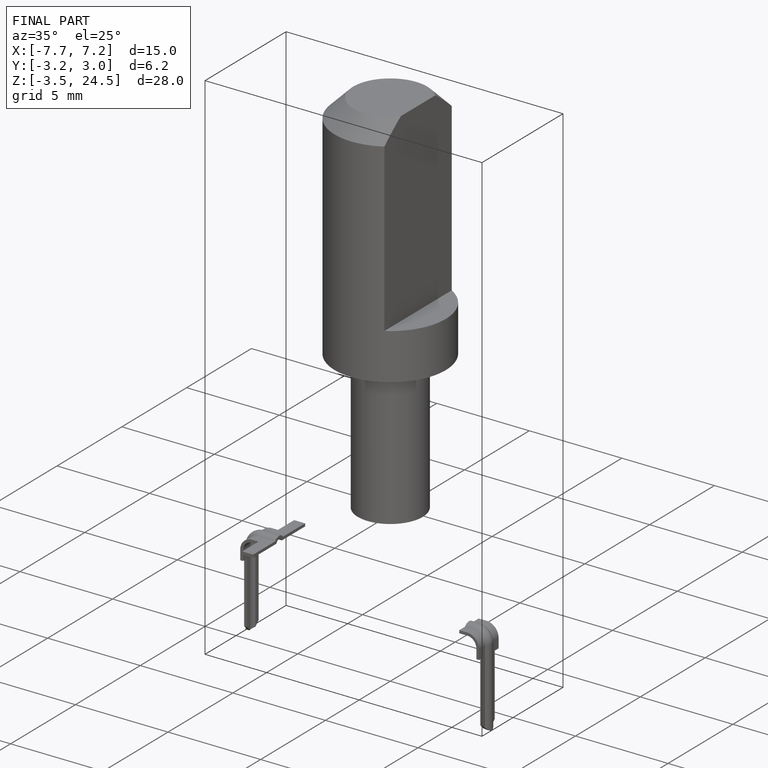
[diagram: finished part — iso view with bounding-box wireframe]
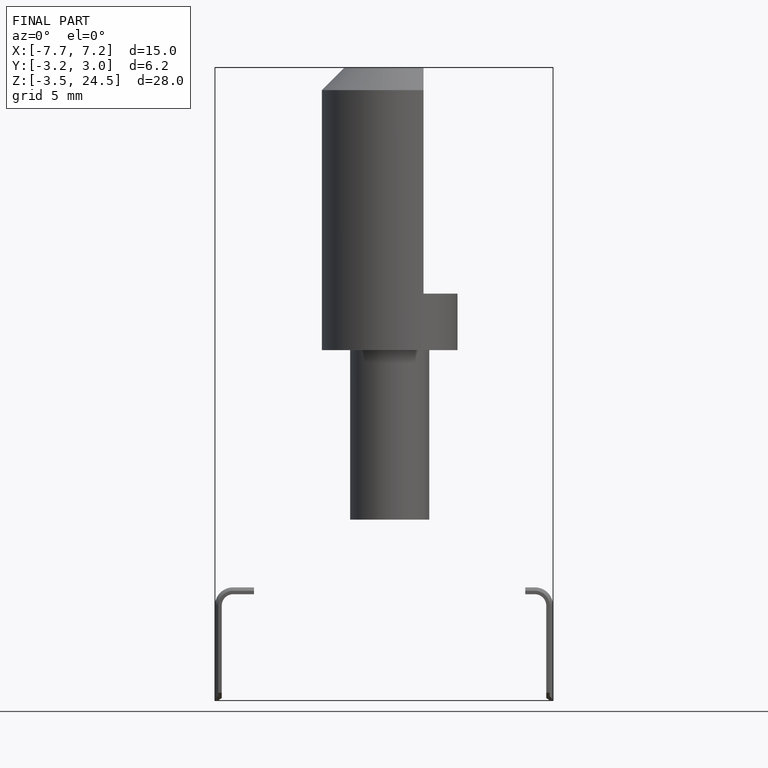
[diagram: finished part — front view with bounding-box wireframe]
